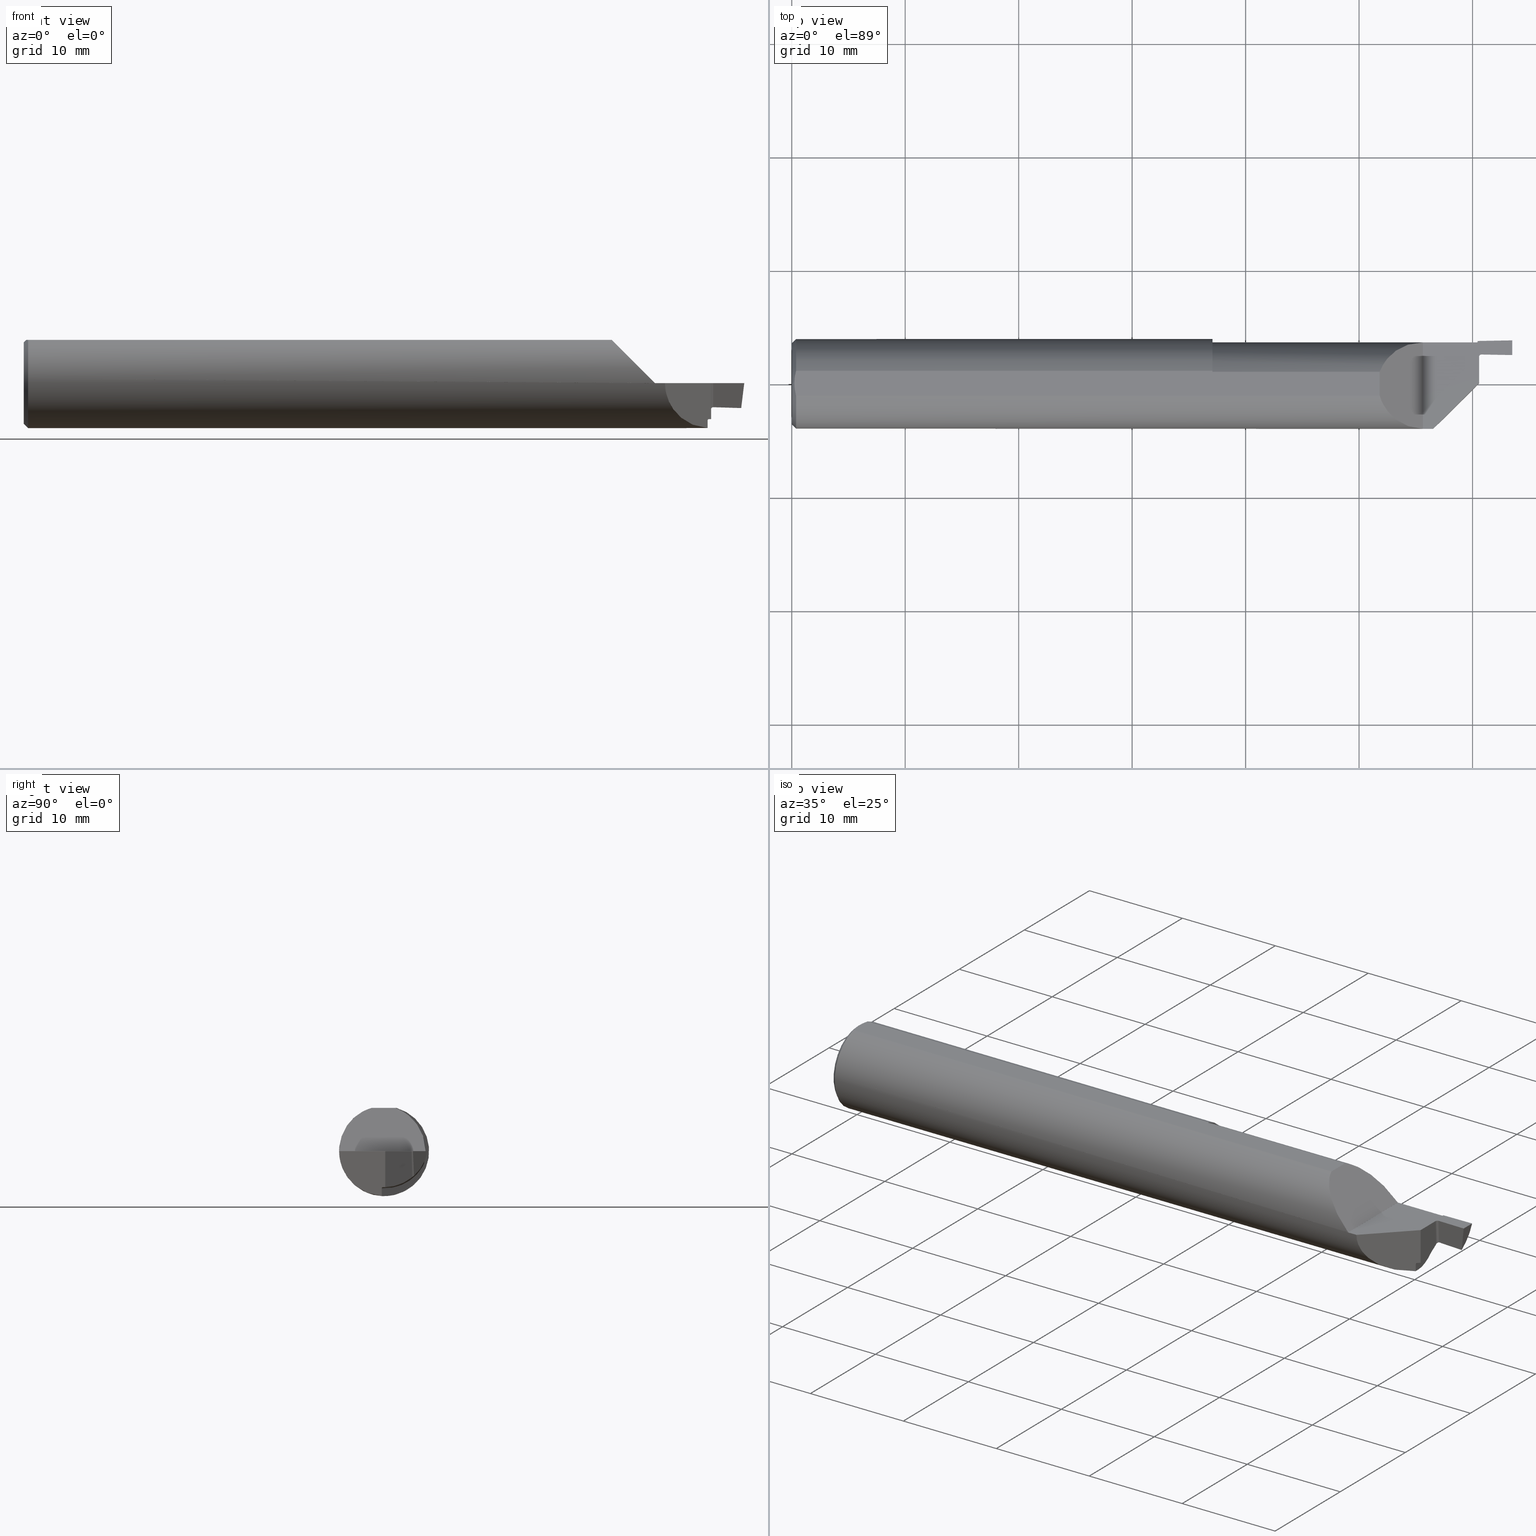
[diagram: canonical four-view strip — front | top / right | iso, engineering-drawing reading convention]
A machine part, canonical four-view strip (front | top / right | iso — engineering-drawing reading convention). The complete STEP part file that produces these views, byte-faithful:
ISO-10303-21;
HEADER;
FILE_DESCRIPTION (( 'STEP AP203' ),
    '1' );
FILE_NAME ('220079-FG312-050.STEP',
    '2024-06-10T23:05:04',
    ( '' ),
    ( '' ),
    'SwSTEP 2.0',
    'SolidWorks 2022',
    '' );
FILE_SCHEMA (( 'CONFIG_CONTROL_DESIGN' ));
ENDSEC;

DATA;
#1 = CARTESIAN_POINT ( 'NONE',  ( 2.393000000000000238, 0.09396571168274749086, -0.1560999999999999888 ) ) ;
#2 = CARTESIAN_POINT ( 'NONE',  ( 1.918500000000000316, 0.03081474338883895270, -0.1530283032313957403 ) ) ;
#3 = ADVANCED_FACE ( 'NONE', ( #369 ), #628, .T. ) ;
#4 = ORIENTED_EDGE ( 'NONE', *, *, #370, .F. ) ;
#5 = CARTESIAN_POINT ( 'NONE',  ( 2.371244399044610596, 0.1398354349246319905, -0.03676311797255334135 ) ) ;
#6 = CLOSED_SHELL ( 'NONE', ( #656, #66, #3, #464, #585, #614, #555, #624, #86, #179, #153, #321, #830, #634, #696, #362, #414, #254, #397, #461, #785, #731 ) ) ;
#7 = PLANE ( 'NONE',  #761 ) ;
#8 = VECTOR ( 'NONE', #804, 39.37007874015748143 ) ;
#9 = ORIENTED_EDGE ( 'NONE', *, *, #379, .T. ) ;
#10 = LOCAL_TIME ( 16, 5, 4.000000000000000000, #128 ) ;
#11 = DIRECTION ( 'NONE',  ( 0.000000000000000000, -1.000000000000000000, 0.000000000000000000 ) ) ;
#12 = DIRECTION ( 'NONE',  ( 1.000000000000000000, -3.711749991391663214E-17, 0.000000000000000000 ) ) ;
#13 = EDGE_LOOP ( 'NONE', ( #710, #538, #736, #386, #478, #340 ) ) ;
#14 = EDGE_CURVE ( 'NONE', #148, #140, #558, .T. ) ;
#15 = CARTESIAN_POINT ( 'NONE',  ( 2.393239966996807411, 0.1077084494822595495, -0.3937401514929491086 ) ) ;
#16 = CARTESIAN_POINT ( 'NONE',  ( 2.393379501196029935, 0.1157023584019033630, -0.3934609555193290253 ) ) ;
#17 = VERTEX_POINT ( 'NONE', #357 ) ;
#18 = ORIENTED_EDGE ( 'NONE', *, *, #158, .F. ) ;
#19 = DIRECTION ( 'NONE',  ( 1.000000000000000000, -3.711749991391663214E-17, 0.000000000000000000 ) ) ;
#20 = CARTESIAN_POINT ( 'NONE',  ( 2.377000000000000224, 0.1440992383597803073, 0.000000000000000000 ) ) ;
#21 = CIRCLE ( 'NONE', #760, 0.1599999999999999756 ) ;
#22 = VERTEX_POINT ( 'NONE', #567 ) ;
#23 = ORIENTED_EDGE ( 'NONE', *, *, #434, .F. ) ;
#24 = AXIS2_PLACEMENT_3D ( 'NONE', #40, #633, #47 ) ;
#25 = CARTESIAN_POINT ( 'NONE',  ( 2.377000000000000224, 0.1418538182356731125, -0.02671128091613287833 ) ) ;
#26 = CARTESIAN_POINT ( 'NONE',  ( 2.377763926017768981, -0.003336073982230913955, -0.1249361410656338184 ) ) ;
#27 = ORIENTED_EDGE ( 'NONE', *, *, #305, .T. ) ;
#28 = VERTEX_POINT ( 'NONE', #695 ) ;
#29 = CARTESIAN_POINT ( 'NONE',  ( 2.379234947019490232, 0.1435602807810283099, -0.02194418270666098625 ) ) ;
#30 = CARTESIAN_POINT ( 'NONE',  ( 2.189999999999999947, -0.04286257108480570621, 9.999999999993541345E-05 ) ) ;
#31 = ORIENTED_EDGE ( 'NONE', *, *, #684, .F. ) ;
#32 = ORIENTED_EDGE ( 'NONE', *, *, #755, .T. ) ;
#33 = CARTESIAN_POINT ( 'NONE',  ( 2.385054088811350503, 0.09899384556074736219, -0.08874999027570952548 ) ) ;
#34 = PLANE ( 'NONE',  #196 ) ;
#35 = EDGE_LOOP ( 'NONE', ( #623, #102, #260, #660, #225, #162, #224, #156, #705, #484 ) ) ;
#36 = TOROIDAL_SURFACE ( 'NONE', #594, 0.1549999999999999989, 0.005000000000000000104 ) ;
#37 = CIRCLE ( 'NONE', #91, 0.1411000000000003085 ) ;
#38 = CC_DESIGN_APPROVAL ( #141, ( #764 ) ) ;
#39 = CARTESIAN_POINT ( 'NONE',  ( 0.000000000000000000, 0.000000000000000000, 0.000000000000000000 ) ) ;
#40 = CARTESIAN_POINT ( 'NONE',  ( 2.189999999999999947, -0.01590076164021980015, 0.000000000000000000 ) ) ;
#41 = VERTEX_POINT ( 'NONE', #504 ) ;
#42 = CALENDAR_DATE ( 2024, 10, 6 ) ;
#43 = EDGE_CURVE ( 'NONE', #318, #344, #21, .T. ) ;
#44 = PLANE ( 'NONE',  #367 ) ;
#45 = CARTESIAN_POINT ( 'NONE',  ( 2.385056136826031459, 0.09491177609559865724, -0.09211041322591238811 ) ) ;
#46 = PERSON_AND_ORGANIZATION_ROLE ( 'design_owner' ) ;
#47 = DIRECTION ( 'NONE',  ( 0.000000000000000000, 0.000000000000000000, -1.000000000000000000 ) ) ;
#48 = VERTEX_POINT ( 'NONE', #119 ) ;
#49 = VECTOR ( 'NONE', #631, 39.37007874015748143 ) ;
#50 = CARTESIAN_POINT ( 'NONE',  ( 2.385000000000000231, 0.09396571168274749086, -0.1560999999999999888 ) ) ;
#51 = CIRCLE ( 'NONE', #116, 0.1560999999999999888 ) ;
#52 = CARTESIAN_POINT ( 'NONE',  ( 2.385239968482531392, 0.1077084494822595495, -0.3937450271037417626 ) ) ;
#53 = CARTESIAN_POINT ( 'NONE',  ( 2.385005047996914485, 0.09424986387498845986, -0.008282853067991792495 ) ) ;
#54 = EDGE_CURVE ( 'NONE', #308, #218, #647, .T. ) ;
#55 = CARTESIAN_POINT ( 'NONE',  ( 2.189999999999999947, -0.2560999999999999943, 0.000000000000000000 ) ) ;
#56 = CARTESIAN_POINT ( 'NONE',  ( 2.385004234609788387, 0.09422697828338277848, -0.006948231403292474094 ) ) ;
#57 = ORIENTED_EDGE ( 'NONE', *, *, #275, .F. ) ;
#58 = B_SPLINE_CURVE_WITH_KNOTS ( 'NONE', 3,
 ( #124, #375, #265, #65, #641, #653, #383, #826, #5, #829, #718, #197 ),
 .UNSPECIFIED., .F., .F.,
 ( 4, 2, 2, 2, 2, 4 ),
 ( 6.925468430849999991E-05, 0.0001140880610904695253, 0.0001589214378724390642, 0.0002485881914363778167, 0.0004279216985642606344, 0.0007865887128200264866 ),
 .UNSPECIFIED. ) ;
#59 = ORIENTED_EDGE ( 'NONE', *, *, #231, .T. ) ;
#60 = FACE_OUTER_BOUND ( 'NONE', #726, .T. ) ;
#61 = CARTESIAN_POINT ( 'NONE',  ( 0.000000000000000000, -0.04286257108480545641, 0.1500999999999999834 ) ) ;
#62 = VECTOR ( 'NONE', #77, 39.37007874015748143 ) ;
#63 = FACE_OUTER_BOUND ( 'NONE', #353, .T. ) ;
#64 = CARTESIAN_POINT ( 'NONE',  ( 2.500000000000000000, 0.1510992383597803412, 2.987958743070287587E-17 ) ) ;
#65 = CARTESIAN_POINT ( 'NONE',  ( 2.373515878567528326, 0.1416355429769736440, -0.02797407924118477593 ) ) ;
#66 = ADVANCED_FACE ( 'NONE', ( #552 ), #435, .F. ) ;
#67 = DIRECTION ( 'NONE',  ( 0.000000000000000000, 0.000000000000000000, -1.000000000000000000 ) ) ;
#68 = EDGE_LOOP ( 'NONE', ( #122, #802, #9, #377, #797 ) ) ;
#69 = CARTESIAN_POINT ( 'NONE',  ( 2.500000000000000000, 0.1510992383597803412, 2.987958743070287587E-17 ) ) ;
#70 = CARTESIAN_POINT ( 'NONE',  ( 2.385003195454505232, 0.09421128917193223595, -0.001601214642617717612 ) ) ;
#71 = DIRECTION ( 'NONE',  ( -1.000000000000000000, 3.711749991391663214E-17, -0.000000000000000000 ) ) ;
#72 = AXIS2_PLACEMENT_3D ( 'NONE', #309, #130, #822 ) ;
#73 = CARTESIAN_POINT ( 'NONE',  ( 0.000000000000000000, 1.727976633596919191E-17, 0.1411000000000003085 ) ) ;
#74 = ORIENTED_EDGE ( 'NONE', *, *, #772, .T. ) ;
#75 = EDGE_CURVE ( 'NONE', #776, #186, #680, .T. ) ;
#76 = CARTESIAN_POINT ( 'NONE',  ( 2.379999999999999893, 0.1490046305683959127, 0.000000000000000000 ) ) ;
#77 = DIRECTION ( 'NONE',  ( 0.7071067811865483499, 8.659560562354922997E-17, 0.7071067811865466846 ) ) ;
#78 = VERTEX_POINT ( 'NONE', #805 ) ;
#79 = VERTEX_POINT ( 'NONE', #424 ) ;
#80 = DIRECTION ( 'NONE',  ( -1.000000000000000000, 0.000000000000000000, 0.000000000000000000 ) ) ;
#81 = PLANE ( 'NONE',  #327 ) ;
#82 = ORIENTED_EDGE ( 'NONE', *, *, #477, .T. ) ;
#83 = ORIENTED_EDGE ( 'NONE', *, *, #176, .T. ) ;
#84 = B_SPLINE_CURVE_WITH_KNOTS ( 'NONE', 3,
 ( #170, #33, #361, #563, #358, #109 ),
 .UNSPECIFIED., .F., .F.,
 ( 4, 2, 4 ),
 ( 0.000000000000000000, 0.0001839710963329287802, 0.0003679421926658575604 ),
 .UNSPECIFIED. ) ;
#85 = CARTESIAN_POINT ( 'NONE',  ( 2.377656767478751210, 0.1419673230917905260, -0.02643351181338333619 ) ) ;
#86 = ADVANCED_FACE ( 'NONE', ( #247 ), #36, .F. ) ;
#87 = CARTESIAN_POINT ( 'NONE',  ( 2.393139705841341502, 0.1019644917325672473, -2.881245930817777536E-17 ) ) ;
#88 = AXIS2_PLACEMENT_3D ( 'NONE', #778, #266, #657 ) ;
#89 =( BOUNDED_CURVE ( )  B_SPLINE_CURVE ( 3, ( #316, #700, #769, #69 ),
 .UNSPECIFIED., .F., .F. ) 
 B_SPLINE_CURVE_WITH_KNOTS ( ( 4, 4 ),
 ( 0.8736282583422526615, 1.544540906567494876 ),
 .UNSPECIFIED. ) 
 CURVE ( )  GEOMETRIC_REPRESENTATION_ITEM ( )  RATIONAL_B_SPLINE_CURVE ( ( 1.000000000000000000, 0.9628401240067141487, 0.9628401240067141487, 1.000000000000000000 ) ) 
 REPRESENTATION_ITEM ( '' )  );
#90 = ORIENTED_EDGE ( 'NONE', *, *, #671, .T. ) ;
#91 = AXIS2_PLACEMENT_3D ( 'NONE', #511, #192, #767 ) ;
#92 = TOROIDAL_SURFACE ( 'NONE', #146, 0.1630000000000001170, 0.002999999999999838299 ) ;
#93 = CARTESIAN_POINT ( 'NONE',  ( 2.378200055832649706, 0.1422963648992363606, -0.02554981597091837697 ) ) ;
#94 = EDGE_CURVE ( 'NONE', #308, #469, #557, .T. ) ;
#95 = DIRECTION ( 'NONE',  ( -0.0006090802009083879243, -0.03489418134011375294, 0.9993908270190957621 ) ) ;
#96 = VERTEX_POINT ( 'NONE', #496 ) ;
#97 = ORIENTED_EDGE ( 'NONE', *, *, #453, .F. ) ;
#98 =( BOUNDED_CURVE ( )  B_SPLINE_CURVE ( 3, ( #816, #244, #756, #181 ),
 .UNSPECIFIED., .F., .F. ) 
 B_SPLINE_CURVE_WITH_KNOTS ( ( 4, 4 ),
 ( 0.8437331445914858508, 0.8732885722994687683 ),
 .UNSPECIFIED. ) 
 CURVE ( )  GEOMETRIC_REPRESENTATION_ITEM ( )  RATIONAL_B_SPLINE_CURVE ( ( 1.000000000000000000, 0.9999272077158007921, 0.9999272077158007921, 1.000000000000000000 ) ) 
 REPRESENTATION_ITEM ( '' )  );
#99 = DIRECTION ( 'NONE',  ( 1.000000000000000000, 0.000000000000000000, 0.000000000000000000 ) ) ;
#100 = CARTESIAN_POINT ( 'NONE',  ( 1.460000000000000187, -0.2561000000000000498, 0.1500999999999999834 ) ) ;
#101 = ADVANCED_BREP_SHAPE_REPRESENTATION ( '220079-FG312-050', ( #732, #198 ), #599 ) ;
#102 = ORIENTED_EDGE ( 'NONE', *, *, #658, .F. ) ;
#103 = APPROVAL_DATE_TIME ( #545, #222 ) ;
#104 = DIRECTION ( 'NONE',  ( 1.000000000000000000, 0.000000000000000000, 0.000000000000000000 ) ) ;
#105 = EDGE_LOOP ( 'NONE', ( #406, #487, #256, #188, #669, #616 ) ) ;
#106 = DIRECTION ( 'NONE',  ( -0.9998476951563914916, -0.01745240643726934937, 0.000000000000000000 ) ) ;
#107 = EDGE_CURVE ( 'NONE', #473, #28, #98, .T. ) ;
#108 = CARTESIAN_POINT ( 'NONE',  ( 2.379999999999999893, 0.1940992383597803239, 0.000000000000000000 ) ) ;
#109 = CARTESIAN_POINT ( 'NONE',  ( 2.393190606884384675, 0.1048806105354574553, -0.08351943705743580804 ) ) ;
#110 = CARTESIAN_POINT ( 'NONE',  ( 0.01499999999999970281, 0.000000000000000000, -0.1560999999999999888 ) ) ;
#111 = DIRECTION ( 'NONE',  ( 0.000000000000000000, 0.000000000000000000, 1.000000000000000000 ) ) ;
#112 = DIRECTION ( 'NONE',  ( 1.000000000000000000, -3.711749991391663214E-17, 0.000000000000000000 ) ) ;
#113 = EDGE_CURVE ( 'NONE', #186, #148, #396, .T. ) ;
#114 = CARTESIAN_POINT ( 'NONE',  ( 0.000000000000000000, 0.000000000000000000, 0.000000000000000000 ) ) ;
#115 = AXIS2_PLACEMENT_3D ( 'NONE', #259, #831, #193 ) ;
#116 = AXIS2_PLACEMENT_3D ( 'NONE', #694, #556, #748 ) ;
#117 = VECTOR ( 'NONE', #402, 39.37007874015748143 ) ;
#118 = CARTESIAN_POINT ( 'NONE',  ( 2.039999999999999591, -0.04286257108480545641, 0.1500999999999999834 ) ) ;
#119 = CARTESIAN_POINT ( 'NONE',  ( 2.379999999999999893, 0.1467311914840958575, -0.01094750304728992450 ) ) ;
#120 = CARTESIAN_POINT ( 'NONE',  ( 2.371295404501523318, 0.08075183299855108465, -0.1377838268075109174 ) ) ;
#121 = LINE ( 'NONE', #61, #314 ) ;
#122 = ORIENTED_EDGE ( 'NONE', *, *, #820, .T. ) ;
#123 = DATE_TIME_ROLE ( 'classification_date' ) ;
#124 = CARTESIAN_POINT ( 'NONE',  ( 2.375229166716647189, 0.1418801891223627210, -0.02655506686972410046 ) ) ;
#125 = CARTESIAN_POINT ( 'NONE',  ( 2.372688307384104078, 0.0009524803000360264208, 0.02500000000000001180 ) ) ;
#126 = ORIENTED_EDGE ( 'NONE', *, *, #263, .T. ) ;
#127 = EDGE_CURVE ( 'NONE', #218, #738, #404, .T. ) ;
#128 = COORDINATED_UNIVERSAL_TIME_OFFSET ( 8, 0, .BEHIND. ) ;
#129 = AXIS2_PLACEMENT_3D ( 'NONE', #16, #728, #668 ) ;
#130 = DIRECTION ( 'NONE',  ( 0.9998476951563914916, 0.01745240643726934937, -0.000000000000000000 ) ) ;
#131 = PRODUCT_RELATED_PRODUCT_CATEGORY ( 'detail', '', ( #516 ) ) ;
#132 = CARTESIAN_POINT ( 'NONE',  ( 2.039999999999999591, 0.03950672882812745340, 0.1500999999999999834 ) ) ;
#133 = SHAPE_DEFINITION_REPRESENTATION ( #706, #101 ) ;
#134 = DIRECTION ( 'NONE',  ( -0.9998476951563916026, -0.01745240643726935284, -0.000000000000000000 ) ) ;
#135 = DIRECTION ( 'NONE',  ( -1.000000000000000000, 0.000000000000000000, 0.000000000000000000 ) ) ;
#136 = EDGE_LOOP ( 'NONE', ( #643, #270, #83, #605 ) ) ;
#137 = CARTESIAN_POINT ( 'NONE',  ( 2.370342329189448094, 0.1353534810585909909, -0.05217426631596511211 ) ) ;
#138 = EDGE_CURVE ( 'NONE', #801, #539, #143, .T. ) ;
#139 = CARTESIAN_POINT ( 'NONE',  ( 2.630067462402516654, 0.1533695743610629103, 0.000000000000000000 ) ) ;
#140 = VERTEX_POINT ( 'NONE', #517 ) ;
#141 = APPROVAL ( #226, 'UNSPECIFIED' ) ;
#142 = CARTESIAN_POINT ( 'NONE',  ( 2.377000000000000224, 0.1418538182356731125, -0.02671128091613287833 ) ) ;
#143 = CIRCLE ( 'NONE', #711, 0.1549999999999999711 ) ;
#144 = AXIS2_PLACEMENT_3D ( 'NONE', #565, #814, #178 ) ;
#145 = CARTESIAN_POINT ( 'NONE',  ( 2.377763926017768981, -0.003336073982230913955, -0.1249361410656338184 ) ) ;
#146 = AXIS2_PLACEMENT_3D ( 'NONE', #792, #71, #667 ) ;
#147 = ORIENTED_EDGE ( 'NONE', *, *, #752, .F. ) ;
#148 = VERTEX_POINT ( 'NONE', #774 ) ;
#149 = CARTESIAN_POINT ( 'NONE',  ( 2.379999999999999893, 0.1483830813600987564, -0.003676574659982130306 ) ) ;
#150 = CARTESIAN_POINT ( 'NONE',  ( 2.373633180895108996, -0.007466819104891537703, -0.1267740301659952828 ) ) ;
#151 = ORIENTED_EDGE ( 'NONE', *, *, #799, .F. ) ;
#152 = ORIENTED_EDGE ( 'NONE', *, *, #501, .F. ) ;
#153 = ADVANCED_FACE ( 'NONE', ( #578 ), #448, .T. ) ;
#154 = CARTESIAN_POINT ( 'NONE',  ( 2.379999999999999893, 0.1467311914840958575, -0.01094750304728992450 ) ) ;
#155 = CARTESIAN_POINT ( 'NONE',  ( 0.008999999999999475433, 0.007249779851909510416, 0.1500999999999999834 ) ) ;
#156 = ORIENTED_EDGE ( 'NONE', *, *, #597, .T. ) ;
#157 = ORIENTED_EDGE ( 'NONE', *, *, #138, .F. ) ;
#158 = EDGE_CURVE ( 'NONE', #530, #48, #811, .T. ) ;
#159 = CARTESIAN_POINT ( 'NONE',  ( 2.385001483111417908, 0.09411543361701144028, -0.0002790132549049058244 ) ) ;
#160 = CARTESIAN_POINT ( 'NONE',  ( 0.01499999999999970281, 0.04286257108480545641, 0.1500999999999999834 ) ) ;
#161 = ORIENTED_EDGE ( 'NONE', *, *, #370, .T. ) ;
#162 = ORIENTED_EDGE ( 'NONE', *, *, #348, .F. ) ;
#163 = DIRECTION ( 'NONE',  ( 3.711749991391663214E-17, 1.000000000000000000, 0.000000000000000000 ) ) ;
#164 = VERTEX_POINT ( 'NONE', #64 ) ;
#165 = LENGTH_MEASURE_WITH_UNIT ( LENGTH_MEASURE( 0.02539999999999999897 ), #749 );
#166 = CARTESIAN_POINT ( 'NONE',  ( 2.377000000000000224, -0.01590076164021980709, 0.000000000000000000 ) ) ;
#167 = EDGE_CURVE ( 'NONE', #204, #41, #586, .T. ) ;
#168 = CARTESIAN_POINT ( 'NONE',  ( 0.000000000000000000, -0.1560999999999999888, 0.000000000000000000 ) ) ;
#169 = B_SPLINE_CURVE_WITH_KNOTS ( 'NONE', 3,
 ( #691, #307, #630, #427 ),
 .UNSPECIFIED., .F., .F.,
 ( 4, 4 ),
 ( 0.000000000000000000, 3.051263499647781233E-05 ),
 .UNSPECIFIED. ) ;
#170 = CARTESIAN_POINT ( 'NONE',  ( 2.385055041774849283, 0.09711400549466935039, -0.09031363161221099556 ) ) ;
#171 = CARTESIAN_POINT ( 'NONE',  ( 2.039999999999999591, 0.04286257108480545641, 0.1500999999999999834 ) ) ;
#172 = CARTESIAN_POINT ( 'NONE',  ( 2.372167059642986242, 0.03081474338882099831, -0.1530283032314002645 ) ) ;
#173 = DATE_TIME_ROLE ( 'creation_date' ) ;
#174 = DIRECTION ( 'NONE',  ( 0.7071067811865483499, 0.000000000000000000, -0.7071067811865466846 ) ) ;
#175 =( BOUNDED_CURVE ( )  B_SPLINE_CURVE ( 3, ( #346, #777, #784, #202 ),
 .UNSPECIFIED., .F., .F. ) 
 B_SPLINE_CURVE_WITH_KNOTS ( ( 4, 4 ),
 ( 1.589012014906513892, 2.237706698034379826 ),
 .UNSPECIFIED. ) 
 CURVE ( )  GEOMETRIC_REPRESENTATION_ITEM ( )  RATIONAL_B_SPLINE_CURVE ( ( 1.000000000000000000, 0.9652392827604920900, 0.9652392827604920900, 1.000000000000000000 ) ) 
 REPRESENTATION_ITEM ( '' )  );
#176 = EDGE_CURVE ( 'NONE', #539, #186, #313, .T. ) ;
#177 = CARTESIAN_POINT ( 'NONE',  ( 2.380000000000028315, 0.1460423594511482681, -0.01373764327083972295 ) ) ;
#178 = DIRECTION ( 'NONE',  ( 0.01745240643726934937, -0.9998476951563914916, 0.000000000000000000 ) ) ;
#179 = ADVANCED_FACE ( 'NONE', ( #190 ), #249, .F. ) ;
#180 = DESIGN_CONTEXT ( 'detailed design', #480, 'design' ) ;
#181 = CARTESIAN_POINT ( 'NONE',  ( 2.489375182436742939, 0.1033069263747718736, -0.08653219496919382914 ) ) ;
#182 =( BOUNDED_CURVE ( )  B_SPLINE_CURVE ( 3, ( #368, #324, #261, #592 ),
 .UNSPECIFIED., .F., .T. ) 
 B_SPLINE_CURVE_WITH_KNOTS ( ( 4, 4 ),
 ( 4.713013980425380112, 5.929564525929066576 ),
 .UNSPECIFIED. ) 
 CURVE ( )  GEOMETRIC_REPRESENTATION_ITEM ( )  RATIONAL_B_SPLINE_CURVE ( ( 1.000000000000000000, 0.8804232255846620170, 0.8804232255846620170, 1.000000000000000000 ) ) 
 REPRESENTATION_ITEM ( '' )  );
#183 = APPROVAL_ROLE ( '' ) ;
#184 = CARTESIAN_POINT ( 'NONE',  ( 2.370342329189448094, 0.1353534810585909909, -0.05217426631596511211 ) ) ;
#185 = DIRECTION ( 'NONE',  ( 0.000000000000000000, 1.000000000000000000, 0.000000000000000000 ) ) ;
#186 = VERTEX_POINT ( 'NONE', #447 ) ;
#187 = B_SPLINE_CURVE_WITH_KNOTS ( 'NONE', 3,
 ( #276, #212, #150, #793, #272, #26 ),
 .UNSPECIFIED., .F., .F.,
 ( 4, 2, 4 ),
 ( 0.000000000000000000, 0.0001183898561048860596, 0.0002367797122097721192 ),
 .UNSPECIFIED. ) ;
#188 = ORIENTED_EDGE ( 'NONE', *, *, #379, .F. ) ;
#189 = FACE_OUTER_BOUND ( 'NONE', #105, .T. ) ;
#190 = FACE_OUTER_BOUND ( 'NONE', #591, .T. ) ;
#191 = EDGE_CURVE ( 'NONE', #824, #164, #376, .T. ) ;
#192 = DIRECTION ( 'NONE',  ( -1.000000000000000000, -0.000000000000000000, -0.000000000000000000 ) ) ;
#193 = DIRECTION ( 'NONE',  ( 0.000000000000000000, 0.000000000000000000, -1.000000000000000000 ) ) ;
#194 = SECURITY_CLASSIFICATION_LEVEL ( 'unclassified' ) ;
#195 = EDGE_LOOP ( 'NONE', ( #413, #491, #230, #602, #798, #617, #334, #97, #207, #250, #90, #606 ) ) ;
#196 = AXIS2_PLACEMENT_3D ( 'NONE', #359, #418, #494 ) ;
#197 = CARTESIAN_POINT ( 'NONE',  ( 2.370342329189448094, 0.1353534810585909909, -0.05217426631596511211 ) ) ;
#198 = AXIS2_PLACEMENT_3D ( 'NONE', #39, #364, #99 ) ;
#199 = CARTESIAN_POINT ( 'NONE',  ( 2.157499999999999751, -0.2235999999999995491, 0.000000000000000000 ) ) ;
#200 = EDGE_LOOP ( 'NONE', ( #82, #779, #215 ) ) ;
#201 = EDGE_CURVE ( 'NONE', #333, #530, #651, .T. ) ;
#202 = CARTESIAN_POINT ( 'NONE',  ( 2.385000000000000231, 0.09396571168274749086, -0.09286048068380960141 ) ) ;
#203 = CARTESIAN_POINT ( 'NONE',  ( 2.385000000000000231, 0.003900000000000025408, -0.1249751148411059609 ) ) ;
#204 = VERTEX_POINT ( 'NONE', #203 ) ;
#205 = DIRECTION ( 'NONE',  ( -0.000000000000000000, -0.000000000000000000, 1.000000000000000000 ) ) ;
#206 = CARTESIAN_POINT ( 'NONE',  ( 2.385938313768157126, 0.09827078404856430527, -0.0001333563681700370210 ) ) ;
#207 = ORIENTED_EDGE ( 'NONE', *, *, #755, .F. ) ;
#208 = VERTEX_POINT ( 'NONE', #132 ) ;
#209 = B_SPLINE_CURVE_WITH_KNOTS ( 'NONE', 3,
 ( #608, #471, #536, #734, #155, #781 ),
 .UNSPECIFIED., .F., .F.,
 ( 4, 2, 4 ),
 ( 0.003872957156311483077, 0.004417820756918436169, 0.004962684357525389695 ),
 .UNSPECIFIED. ) ;
#210 = DIRECTION ( 'NONE',  ( 0.000000000000000000, 1.000000000000000000, 0.000000000000000000 ) ) ;
#211 = AXIS2_PLACEMENT_3D ( 'NONE', #466, #527, #80 ) ;
#212 = CARTESIAN_POINT ( 'NONE',  ( 2.372848955506935642, -0.008251044493063981050, -0.1281467683057909701 ) ) ;
#213 = AXIS2_PLACEMENT_3D ( 'NONE', #50, #429, #351 ) ;
#214 = ORIENTED_EDGE ( 'NONE', *, *, #245, .T. ) ;
#215 = ORIENTED_EDGE ( 'NONE', *, *, #501, .T. ) ;
#216 = LINE ( 'NONE', #336, #612 ) ;
#217 = FACE_OUTER_BOUND ( 'NONE', #13, .T. ) ;
#218 = VERTEX_POINT ( 'NONE', #382 ) ;
#219 = EDGE_CURVE ( 'NONE', #776, #344, #457, .T. ) ;
#220 = B_SPLINE_CURVE_WITH_KNOTS ( 'NONE', 3,
 ( #87, #343, #615, #206, #462, #280 ),
 .UNSPECIFIED., .F., .F.,
 ( 4, 2, 4 ),
 ( 0.000000000000000000, 0.5000000000000000000, 1.000000000000000000 ),
 .UNSPECIFIED. ) ;
#221 = CARTESIAN_POINT ( 'NONE',  ( 2.379999999999999893, 0.1476249171666393079, -0.007327433341974248782 ) ) ;
#222 = APPROVAL ( #744, 'UNSPECIFIED' ) ;
#223 = FACE_OUTER_BOUND ( 'NONE', #200, .T. ) ;
#224 = ORIENTED_EDGE ( 'NONE', *, *, #569, .T. ) ;
#225 = ORIENTED_EDGE ( 'NONE', *, *, #474, .T. ) ;
#226 = APPROVAL_STATUS ( 'not_yet_approved' ) ;
#227 = DIRECTION ( 'NONE',  ( 0.1217869383157133695, -0.03676811390802550705, 0.9918750160455352960 ) ) ;
#228 = AXIS2_PLACEMENT_3D ( 'NONE', #476, #12, #163 ) ;
#229 = ORIENTED_EDGE ( 'NONE', *, *, #372, .T. ) ;
#230 = ORIENTED_EDGE ( 'NONE', *, *, #191, .T. ) ;
#231 = EDGE_CURVE ( 'NONE', #513, #164, #262, .T. ) ;
#232 = CARTESIAN_POINT ( 'NONE',  ( 2.500000000000000000, 0.1000992383597803653, 0.000000000000000000 ) ) ;
#233 = CARTESIAN_POINT ( 'NONE',  ( 2.372391662347563379, 0.01794726306141073563, -0.1556193801497015861 ) ) ;
#234 =( NAMED_UNIT ( * ) PLANE_ANGLE_UNIT ( ) SI_UNIT ( $, .RADIAN. ) );
#235 = FACE_OUTER_BOUND ( 'NONE', #136, .T. ) ;
#236 = EDGE_LOOP ( 'NONE', ( #405, #543, #701 ) ) ;
#237 = CARTESIAN_POINT ( 'NONE',  ( 2.385012912646144567, 0.09447114491674436787, -0.02118732490371358357 ) ) ;
#238 = DIRECTION ( 'NONE',  ( 0.000000000000000000, 1.000000000000000000, 0.000000000000000000 ) ) ;
#239 = EDGE_LOOP ( 'NONE', ( #389, #526, #729, #666 ) ) ;
#240 = EDGE_CURVE ( 'NONE', #148, #41, #521, .T. ) ;
#241 = VECTOR ( 'NONE', #709, 39.37007874015748143 ) ;
#242 = APPROVAL_ROLE ( '' ) ;
#243 = FACE_OUTER_BOUND ( 'NONE', #236, .T. ) ;
#244 = CARTESIAN_POINT ( 'NONE',  ( 2.424841804759129360, 0.1043637696812105276, -0.08453967324277160411 ) ) ;
#245 = EDGE_CURVE ( 'NONE', #530, #824, #388, .T. ) ;
#246 = DIRECTION ( 'NONE',  ( 0.000000000000000000, 0.000000000000000000, -1.000000000000000000 ) ) ;
#247 = FACE_OUTER_BOUND ( 'NONE', #670, .T. ) ;
#248 = ORIENTED_EDGE ( 'NONE', *, *, #671, .F. ) ;
#249 = PLANE ( 'NONE',  #115 ) ;
#250 = ORIENTED_EDGE ( 'NONE', *, *, #384, .F. ) ;
#251 = AXIS2_PLACEMENT_3D ( 'NONE', #525, #765, #135 ) ;
#252 = PERSON_AND_ORGANIZATION ( #577, #568 ) ;
#253 = FACE_OUTER_BOUND ( 'NONE', #783, .T. ) ;
#254 = ADVANCED_FACE ( 'NONE', ( #593 ), #7, .F. ) ;
#255 = CARTESIAN_POINT ( 'NONE',  ( 1.460000000000000187, 0.1440992383597802795, 0.000000000000000000 ) ) ;
#256 = ORIENTED_EDGE ( 'NONE', *, *, #127, .T. ) ;
#257 = CC_DESIGN_PERSON_AND_ORGANIZATION_ASSIGNMENT ( #354, #421, ( #399 ) ) ;
#258 = CARTESIAN_POINT ( 'NONE',  ( 2.370639515830912813, 0.1183276697718876336, -0.1015324341320246460 ) ) ;
#259 = CARTESIAN_POINT ( 'NONE',  ( 0.000000000000000000, 0.000000000000000000, 0.000000000000000000 ) ) ;
#260 = ORIENTED_EDGE ( 'NONE', *, *, #544, .F. ) ;
#261 = CARTESIAN_POINT ( 'NONE',  ( 2.063975418773851711, 0.1044566178690502362, 0.1261245812261483912 ) ) ;
#262 = LINE ( 'NONE', #325, #289 ) ;
#263 = EDGE_CURVE ( 'NONE', #609, #96, #121, .T. ) ;
#264 = VECTOR ( 'NONE', #712, 39.37007874015748854 ) ;
#265 = CARTESIAN_POINT ( 'NONE',  ( 2.374165026253837407, 0.1418026415305609633, -0.02701616201808509227 ) ) ;
#266 = DIRECTION ( 'NONE',  ( 1.000000000000000000, 0.000000000000000000, 0.000000000000000000 ) ) ;
#267 = EDGE_LOOP ( 'NONE', ( #794, #330, #635 ) ) ;
#268 = CARTESIAN_POINT ( 'NONE',  ( 2.039999999999999591, -0.04286257108480545641, 0.1500999999999999834 ) ) ;
#269 = LINE ( 'NONE', #679, #750 ) ;
#270 = ORIENTED_EDGE ( 'NONE', *, *, #138, .T. ) ;
#271 = CARTESIAN_POINT ( 'NONE',  ( 2.189999999999999947, -0.1560999679692472164, 9.999999999982123341E-05 ) ) ;
#272 = CARTESIAN_POINT ( 'NONE',  ( 2.376656873800778502, -0.004443126199221629144, -0.1249043962154921389 ) ) ;
#273 = VERTEX_POINT ( 'NONE', #580 ) ;
#274 = LINE ( 'NONE', #540, #813 ) ;
#275 = EDGE_CURVE ( 'NONE', #782, #333, #827, .T. ) ;
#276 = CARTESIAN_POINT ( 'NONE',  ( 2.372848955506936086, -0.008251044493063981050, -0.1297264338229360825 ) ) ;
#277 = ORIENTED_EDGE ( 'NONE', *, *, #14, .T. ) ;
#278 = ORIENTED_EDGE ( 'NONE', *, *, #537, .T. ) ;
#279 = CARTESIAN_POINT ( 'NONE',  ( 0.000000000000000000, 0.04286257108480545641, 0.1500999999999999834 ) ) ;
#280 = CARTESIAN_POINT ( 'NONE',  ( 2.385001483111417908, 0.09411543361701144028, -0.0002790132549049058244 ) ) ;
#281 = ORIENTED_EDGE ( 'NONE', *, *, #518, .T. ) ;
#282 = CARTESIAN_POINT ( 'NONE',  ( 1.460000000000000187, -0.01590076164021977240, 0.000000000000000000 ) ) ;
#283 = DIRECTION ( 'NONE',  ( 0.9998476951563914916, -0.01745240643727535151, 0.000000000000000000 ) ) ;
#284 = ORIENTED_EDGE ( 'NONE', *, *, #518, .F. ) ;
#285 = VERTEX_POINT ( 'NONE', #403 ) ;
#286 = EDGE_CURVE ( 'NONE', #725, #22, #400, .T. ) ;
#287 = CARTESIAN_POINT ( 'NONE',  ( 2.379999999999999893, 0.1490046305683959127, 0.000000000000000000 ) ) ;
#288 = DIRECTION ( 'NONE',  ( -1.000000000000000000, -0.000000000000000000, -0.000000000000000000 ) ) ;
#289 = VECTOR ( 'NONE', #185, 39.37007874015748143 ) ;
#290 = DIRECTION ( 'NONE',  ( 0.000000000000000000, 0.000000000000000000, -1.000000000000000000 ) ) ;
#291 = LOCAL_TIME ( 16, 5, 4.000000000000000000, #689 ) ;
#292 = PLANE ( 'NONE',  #213 ) ;
#293 = CARTESIAN_POINT ( 'NONE',  ( 0.000000000000000000, 1.819825143532968629E-17, 0.1411000000000003085 ) ) ;
#294 = DIRECTION ( 'NONE',  ( -1.000000000000000000, 3.711749991391663214E-17, -0.000000000000000000 ) ) ;
#295 = CARTESIAN_POINT ( 'NONE',  ( 2.379432643488158750, 0.1440049745493859334, -0.02058405623766048839 ) ) ;
#296 = FACE_OUTER_BOUND ( 'NONE', #717, .T. ) ;
#297 = CARTESIAN_POINT ( 'NONE',  ( 2.385055776052134924, 0.09565151648513786631, -0.09151844828928476505 ) ) ;
#298 = COORDINATED_UNIVERSAL_TIME_OFFSET ( 8, 0, .BEHIND. ) ;
#299 = PLANE ( 'NONE',  #144 ) ;
#300 = EDGE_CURVE ( 'NONE', #28, #513, #620, .T. ) ;
#301 = CARTESIAN_POINT ( 'NONE',  ( 1.460000000000000187, -0.01590076164021977240, 0.000000000000000000 ) ) ;
#302 = VECTOR ( 'NONE', #823, 39.37007874015748143 ) ;
#303 = AXIS2_PLACEMENT_3D ( 'NONE', #584, #446, #773 ) ;
#304 = LOCAL_TIME ( 16, 5, 4.000000000000000000, #298 ) ;
#305 = EDGE_CURVE ( 'NONE', #548, #273, #786, .T. ) ;
#306 = COORDINATED_UNIVERSAL_TIME_OFFSET ( 8, 0, .BEHIND. ) ;
#307 = CARTESIAN_POINT ( 'NONE',  ( 2.385000000000000231, 0.09428427481743073546, -0.09260973401708438857 ) ) ;
#308 = VERTEX_POINT ( 'NONE', #411 ) ;
#309 = CARTESIAN_POINT ( 'NONE',  ( 2.377687545859886065, 0.001039742332222376529, 0.02500000000000001180 ) ) ;
#310 = CARTESIAN_POINT ( 'NONE',  ( 2.385002345047224193, 0.09416061770720553226, -0.002944330584033895675 ) ) ;
#311 = EDGE_CURVE ( 'NONE', #473, #621, #269, .T. ) ;
#312 = PLANE ( 'NONE',  #812 ) ;
#313 = LINE ( 'NONE', #654, #408 ) ;
#314 = VECTOR ( 'NONE', #374, 39.37007874015748143 ) ;
#315 = PERSON_AND_ORGANIZATION ( #577, #568 ) ;
#316 = CARTESIAN_POINT ( 'NONE',  ( 2.489375182436742939, 0.1033069263747718736, -0.08653219496919382914 ) ) ;
#317 = CARTESIAN_POINT ( 'NONE',  ( 2.385003523125127423, 0.09420410356945330133, -0.005613609509490690395 ) ) ;
#318 = VERTEX_POINT ( 'NONE', #601 ) ;
#319 = CALENDAR_DATE ( 2024, 10, 6 ) ;
#320 = CARTESIAN_POINT ( 'NONE',  ( 2.189999999999999947, 0.2560999999999999943, 0.000000000000000000 ) ) ;
#321 = ADVANCED_FACE ( 'NONE', ( #217 ), #81, .F. ) ;
#322 = DIRECTION ( 'NONE',  ( 0.000000000000000000, -1.000000000000000000, 0.000000000000000000 ) ) ;
#323 = ORIENTED_EDGE ( 'NONE', *, *, #75, .T. ) ;
#324 = CARTESIAN_POINT ( 'NONE',  ( 2.120766287695780239, 0.1440559360311356729, 0.06933371230421989106 ) ) ;
#325 = CARTESIAN_POINT ( 'NONE',  ( 2.500000000000000000, -0.2560999999999999943, 0.000000000000000000 ) ) ;
#326 = ORIENTED_EDGE ( 'NONE', *, *, #490, .F. ) ;
#327 = AXIS2_PLACEMENT_3D ( 'NONE', #483, #673, #332 ) ;
#328 = CARTESIAN_POINT ( 'NONE',  ( 2.378767279813433166, 0.1428731460595972502, -0.02394130643959085231 ) ) ;
#329 = CARTESIAN_POINT ( 'NONE',  ( 2.196310008884322595, 0.1054001668727518604, 0.000000000000000000 ) ) ;
#330 = ORIENTED_EDGE ( 'NONE', *, *, #648, .T. ) ;
#331 = CARTESIAN_POINT ( 'NONE',  ( 0.01308010236197404939, -0.03587054952121920826, 0.1500999999999999834 ) ) ;
#332 = DIRECTION ( 'NONE',  ( -0.7071067811865486830, -0.7071067811865464625, 0.000000000000000000 ) ) ;
#333 = VERTEX_POINT ( 'NONE', #20 ) ;
#334 = ORIENTED_EDGE ( 'NONE', *, *, #94, .F. ) ;
#335 = EDGE_CURVE ( 'NONE', #539, #17, #187, .T. ) ;
#336 = CARTESIAN_POINT ( 'NONE',  ( 2.385000000000000231, -0.2560999999999999943, 0.000000000000000000 ) ) ;
#337 = CARTESIAN_POINT ( 'NONE',  ( 2.376409719787352159, 0.1418626297334948938, -0.02665924095077311026 ) ) ;
#338 = CC_DESIGN_PERSON_AND_ORGANIZATION_ASSIGNMENT ( #432, #821, ( #570 ) ) ;
#339 = ORIENTED_EDGE ( 'NONE', *, *, #741, .T. ) ;
#340 = ORIENTED_EDGE ( 'NONE', *, *, #240, .F. ) ;
#341 = CARTESIAN_POINT ( 'NONE',  ( 0.01156122974740471897, -0.02873113156979006239, 0.1500999999999999279 ) ) ;
#342 = AXIS2_PLACEMENT_3D ( 'NONE', #489, #112, #238 ) ;
#343 = CARTESIAN_POINT ( 'NONE',  ( 2.391046502187424316, 0.1020010287382544650, 1.941464543226822014E-18 ) ) ;
#344 = VERTEX_POINT ( 'NONE', #659 ) ;
#345 = ORIENTED_EDGE ( 'NONE', *, *, #201, .F. ) ;
#346 = CARTESIAN_POINT ( 'NONE',  ( 2.385000000000000231, 0.003900000000000025408, -0.1249751148411059609 ) ) ;
#347 = CARTESIAN_POINT ( 'NONE',  ( 2.375229166716647189, 0.1418801891223627210, -0.02655506686972410046 ) ) ;
#348 = EDGE_CURVE ( 'NONE', #587, #771, #445, .T. ) ;
#349 = EDGE_LOOP ( 'NONE', ( #440, #766, #151, #161, #444, #730, #278 ) ) ;
#350 = ORIENTED_EDGE ( 'NONE', *, *, #763, .F. ) ;
#351 = DIRECTION ( 'NONE',  ( -0.000000000000000000, 0.000000000000000000, 1.000000000000000000 ) ) ;
#352 = CARTESIAN_POINT ( 'NONE',  ( 2.189999999999999947, -0.2560999999999999943, 0.000000000000000000 ) ) ;
#353 = EDGE_LOOP ( 'NONE', ( #23, #27, #4, #412, #529 ) ) ;
#354 = PERSON_AND_ORGANIZATION ( #577, #568 ) ;
#355 = CARTESIAN_POINT ( 'NONE',  ( 2.189999999999999947, 0.000000000000000000, 0.000000000000000000 ) ) ;
#356 = VECTOR ( 'NONE', #721, 39.37007874015748143 ) ;
#357 = CARTESIAN_POINT ( 'NONE',  ( 2.377763926017768981, -0.003336073982230913955, -0.1249361410656338184 ) ) ;
#358 = CARTESIAN_POINT ( 'NONE',  ( 2.390727515108566514, 0.1049208310181902332, -0.08344004242070025834 ) ) ;
#359 = CARTESIAN_POINT ( 'NONE',  ( 2.385245154593712780, -0.1360082040469302589, -0.4022545007902889047 ) ) ;
#360 = CARTESIAN_POINT ( 'NONE',  ( 2.385056136826031459, 0.09491177609559865724, -0.09211041322591238811 ) ) ;
#361 = CARTESIAN_POINT ( 'NONE',  ( 2.385727698357268611, 0.1008184071607406418, -0.08715664266966950680 ) ) ;
#362 = ADVANCED_FACE ( 'NONE', ( #467 ), #604, .F. ) ;
#363 = DIRECTION ( 'NONE',  ( -0.000000000000000000, 1.000000000000000000, 0.000000000000000000 ) ) ;
#364 = DIRECTION ( 'NONE',  ( 0.000000000000000000, 0.000000000000000000, 1.000000000000000000 ) ) ;
#365 = LINE ( 'NONE', #100, #8 ) ;
#366 = CARTESIAN_POINT ( 'NONE',  ( 2.285319229756169968, -0.09578077024382962434, -0.1512487100964495512 ) ) ;
#367 = AXIS2_PLACEMENT_3D ( 'NONE', #352, #754, #697 ) ;
#368 = CARTESIAN_POINT ( 'NONE',  ( 2.189999999999999947, 0.1440992071097771388, 9.999999999993541345E-05 ) ) ;
#369 = FACE_OUTER_BOUND ( 'NONE', #394, .T. ) ;
#370 = EDGE_CURVE ( 'NONE', #401, #273, #209, .T. ) ;
#371 = VERTEX_POINT ( 'NONE', #737 ) ;
#372 = EDGE_CURVE ( 'NONE', #621, #513, #528, .T. ) ;
#373 = LINE ( 'NONE', #55, #495 ) ;
#374 = DIRECTION ( 'NONE',  ( -1.000000000000000000, -0.000000000000000000, -0.000000000000000000 ) ) ;
#375 = CARTESIAN_POINT ( 'NONE',  ( 2.374634460130373270, 0.1418890240198467378, -0.02650257298851747823 ) ) ;
#376 = LINE ( 'NONE', #139, #264 ) ;
#377 = ORIENTED_EDGE ( 'NONE', *, *, #127, .F. ) ;
#378 = AXIS2_PLACEMENT_3D ( 'NONE', #561, #104, #551 ) ;
#379 = EDGE_CURVE ( 'NONE', #621, #738, #220, .T. ) ;
#380 = LOCAL_TIME ( 16, 5, 4.000000000000000000, #306 ) ;
#381 = CARTESIAN_POINT ( 'NONE',  ( 2.375229166716647189, 0.1418801891223627210, -0.02655506686972410046 ) ) ;
#382 = CARTESIAN_POINT ( 'NONE',  ( 2.385005047996914485, 0.09424986387498845986, -0.008282853067991792495 ) ) ;
#383 = CARTESIAN_POINT ( 'NONE',  ( 2.372340772030441247, 0.1410310789320680103, -0.03120366545082840781 ) ) ;
#384 = EDGE_CURVE ( 'NONE', #17, #204, #582, .T. ) ;
#385 = DIRECTION ( 'NONE',  ( 3.711749991391663214E-17, 1.000000000000000000, 0.000000000000000000 ) ) ;
#386 = ORIENTED_EDGE ( 'NONE', *, *, #384, .T. ) ;
#387 = DIRECTION ( 'NONE',  ( -0.0006090802009083879243, -0.03489418134011375294, 0.9993908270190957621 ) ) ;
#388 = LINE ( 'NONE', #719, #566 ) ;
#389 = ORIENTED_EDGE ( 'NONE', *, *, #201, .T. ) ;
#390 = CIRCLE ( 'NONE', #378, 0.1560999999999999888 ) ;
#391 = APPROVAL_PERSON_ORGANIZATION ( #693, #141, #242 ) ;
#392 = CARTESIAN_POINT ( 'NONE',  ( 2.117630523791210084, -0.1560536069884282118, 0.07246947620879010121 ) ) ;
#393 = DIRECTION ( 'NONE',  ( 0.000000000000000000, -1.000000000000000000, 0.000000000000000000 ) ) ;
#394 = EDGE_LOOP ( 'NONE', ( #665, #323, #485, #277, #326, #74, #126, #281, #675, #533, #152 ) ) ;
#395 = ORIENTED_EDGE ( 'NONE', *, *, #658, .T. ) ;
#396 =( BOUNDED_CURVE ( )  B_SPLINE_CURVE ( 3, ( #698, #366, #640, #507 ),
 .UNSPECIFIED., .F., .F. ) 
 B_SPLINE_CURVE_WITH_KNOTS ( ( 4, 4 ),
 ( 4.765271052396672147, 6.283185307179586232 ),
 .UNSPECIFIED. ) 
 CURVE ( )  GEOMETRIC_REPRESENTATION_ITEM ( )  RATIONAL_B_SPLINE_CURVE ( ( 1.000000000000000000, 0.8170360491703279049, 0.8170360491703279049, 1.000000000000000000 ) ) 
 REPRESENTATION_ITEM ( '' )  );
#397 = ADVANCED_FACE ( 'NONE', ( #223 ), #800, .T. ) ;
#398 = CARTESIAN_POINT ( 'NONE',  ( 2.059871508359184311, -0.1124504032942231085, 0.1302284916408148197 ) ) ;
#399 = PRODUCT_DEFINITION ( 'UNKNOWN', '', #764, #180 ) ;
#400 = LINE ( 'NONE', #30, #775 ) ;
#401 = VERTEX_POINT ( 'NONE', #160 ) ;
#402 = DIRECTION ( 'NONE',  ( 1.000000000000000000, 0.000000000000000000, 0.000000000000000000 ) ) ;
#403 = CARTESIAN_POINT ( 'NONE',  ( 2.385000000000000231, 0.09396571168274749086, 0.000000000000000000 ) ) ;
#404 = B_SPLINE_CURVE_WITH_KNOTS ( 'NONE', 3,
 ( #431, #56, #317, #310, #70, #770 ),
 .UNSPECIFIED., .F., .F.,
 ( 4, 2, 4 ),
 ( 0.02300346261602974340, 0.02310447886444353879, 0.02320549511285733418 ),
 .UNSPECIFIED. ) ;
#405 = ORIENTED_EDGE ( 'NONE', *, *, #94, .T. ) ;
#406 = ORIENTED_EDGE ( 'NONE', *, *, #453, .T. ) ;
#407 = CARTESIAN_POINT ( 'NONE',  ( 2.378051787473467016, 0.1421802844965535106, -0.02586551193742273394 ) ) ;
#408 = VECTOR ( 'NONE', #67, 39.37007874015748143 ) ;
#409 = EDGE_CURVE ( 'NONE', #519, #401, #390, .T. ) ;
#410 = VECTOR ( 'NONE', #283, 39.37007874015747433 ) ;
#411 = CARTESIAN_POINT ( 'NONE',  ( 2.385056136826031459, 0.09491177609559865724, -0.09211041322591238811 ) ) ;
#412 = ORIENTED_EDGE ( 'NONE', *, *, #409, .F. ) ;
#413 = ORIENTED_EDGE ( 'NONE', *, *, #809, .T. ) ;
#414 = ADVANCED_FACE ( 'NONE', ( #243 ), #34, .F. ) ;
#415 = APPLICATION_PROTOCOL_DEFINITION ( 'international standard', 'config_control_design', 1994, #420 ) ;
#416 = PLANE ( 'NONE',  #449 ) ;
#417 = ORIENTED_EDGE ( 'NONE', *, *, #300, .T. ) ;
#418 = DIRECTION ( 'NONE',  ( -0.9999998142845093474, -3.514392637717294514E-16, -0.0006094513490878117204 ) ) ;
#419 = CARTESIAN_POINT ( 'NONE',  ( 2.372620164693000522, 0.004856372458775157046, -0.1565755772019202241 ) ) ;
#420 = APPLICATION_CONTEXT ( 'configuration controlled 3d designs of mechanical parts and assemblies' ) ;
#421 = PERSON_AND_ORGANIZATION_ROLE ( 'creator' ) ;
#422 = LINE ( 'NONE', #52, #436 ) ;
#423 = AXIS2_PLACEMENT_3D ( 'NONE', #355, #818, #246 ) ;
#424 = CARTESIAN_POINT ( 'NONE',  ( 1.460000000000000187, 0.04286257108480545641, 0.1500999999999999834 ) ) ;
#425 = EDGE_CURVE ( 'NONE', #469, #218, #422, .T. ) ;
#426 = APPROVAL_ROLE ( '' ) ;
#427 = CARTESIAN_POINT ( 'NONE',  ( 2.385056136826031459, 0.09491177609559865724, -0.09211041322591238811 ) ) ;
#428 = ORIENTED_EDGE ( 'NONE', *, *, #752, .T. ) ;
#429 = DIRECTION ( 'NONE',  ( -1.000000000000000000, 0.000000000000000000, -0.000000000000000000 ) ) ;
#430 = DIRECTION ( 'NONE',  ( -3.711749991391663214E-17, -1.000000000000000000, 0.000000000000000000 ) ) ;
#431 = CARTESIAN_POINT ( 'NONE',  ( 2.385005047996914485, 0.09424986387498845986, -0.008282853067991792495 ) ) ;
#432 = PERSON_AND_ORGANIZATION ( #577, #568 ) ;
#433 = CARTESIAN_POINT ( 'NONE',  ( 2.189999999999999947, 0.2560999999999999943, 9.999999999993541345E-05 ) ) ;
#434 = EDGE_CURVE ( 'NONE', #548, #371, #534, .T. ) ;
#435 = PLANE ( 'NONE',  #481 ) ;
#436 = VECTOR ( 'NONE', #498, 39.37007874015748143 ) ;
#437 = APPROVAL_PERSON_ORGANIZATION ( #747, #222, #426 ) ;
#438 = APPROVAL_PERSON_ORGANIZATION ( #715, #636, #183 ) ;
#439 = DIRECTION ( 'NONE',  ( -0.9925461516413219831, 0.000000000000000000, 0.1218693434051483365 ) ) ;
#440 = ORIENTED_EDGE ( 'NONE', *, *, #704, .F. ) ;
#441 = CALENDAR_DATE ( 2024, 10, 6 ) ;
#442 = DIRECTION ( 'NONE',  ( 1.000000000000000000, 0.000000000000000000, 0.000000000000000000 ) ) ;
#443 = CARTESIAN_POINT ( 'NONE',  ( 2.501506277050174365, 0.1560999999999999888, 0.01226764211312855388 ) ) ;
#444 = ORIENTED_EDGE ( 'NONE', *, *, #763, .T. ) ;
#445 = B_SPLINE_CURVE_WITH_KNOTS ( 'NONE', 3,
 ( #347, #742, #337, #664 ),
 .UNSPECIFIED., .F., .F.,
 ( 4, 4 ),
 ( 6.992893892674702526E-18, 4.515880543215112651E-05 ),
 .UNSPECIFIED. ) ;
#446 = DIRECTION ( 'NONE',  ( 1.000000000000000000, 0.000000000000000000, 0.000000000000000000 ) ) ;
#447 = CARTESIAN_POINT ( 'NONE',  ( 2.372848955506936086, -0.008251044493063981050, -0.1558817829791970255 ) ) ;
#448 = CONICAL_SURFACE ( 'NONE', #88, 0.1411000000000003085, 0.7853981633974471688 ) ;
#449 = AXIS2_PLACEMENT_3D ( 'NONE', #108, #683, #430 ) ;
#450 = EDGE_CURVE ( 'NONE', #371, #519, #486, .T. ) ;
#451 = APPROVAL_DATE_TIME ( #514, #141 ) ;
#452 = DIRECTION ( 'NONE',  ( 0.01745240643727014734, -0.9998476951563916026, 0.000000000000000000 ) ) ;
#453 = EDGE_CURVE ( 'NONE', #78, #308, #169, .T. ) ;
#454 = CARTESIAN_POINT ( 'NONE',  ( 2.379999999999999893, -0.01590076164021980709, 0.000000000000000000 ) ) ;
#455 = ORIENTED_EDGE ( 'NONE', *, *, #490, .T. ) ;
#456 = LINE ( 'NONE', #663, #661 ) ;
#457 = LINE ( 'NONE', #2, #508 ) ;
#458 = ORIENTED_EDGE ( 'NONE', *, *, #305, .F. ) ;
#459 =( BOUNDED_CURVE ( )  B_SPLINE_CURVE ( 3, ( #154, #221, #149, #76 ),
 .UNSPECIFIED., .F., .F. ) 
 B_SPLINE_CURVE_WITH_KNOTS ( ( 4, 4 ),
 ( 2.899587303035652486, 2.974144574370104266 ),
 .UNSPECIFIED. ) 
 CURVE ( )  GEOMETRIC_REPRESENTATION_ITEM ( )  RATIONAL_B_SPLINE_CURVE ( ( 1.000000000000000000, 0.9995368214178022015, 0.9995368214178022015, 1.000000000000000000 ) ) 
 REPRESENTATION_ITEM ( '' )  );
#460 = CARTESIAN_POINT ( 'NONE',  ( 2.189999999999999947, 0.1440992383597802240, 0.000000000000000000 ) ) ;
#461 = ADVANCED_FACE ( 'NONE', ( #572 ), #416, .T. ) ;
#462 = CARTESIAN_POINT ( 'NONE',  ( 2.385039367740889649, 0.09620733778833227834, -0.0002059503887029876217 ) ) ;
#463 = ORIENTED_EDGE ( 'NONE', *, *, #716, .T. ) ;
#464 = ADVANCED_FACE ( 'NONE', ( #296 ), #44, .F. ) ;
#465 = AXIS2_PLACEMENT_3D ( 'NONE', #282, #677, #11 ) ;
#466 = CARTESIAN_POINT ( 'NONE',  ( 2.393000000000000238, 0.09396571168274749086, 0.000000000000000000 ) ) ;
#467 = FACE_OUTER_BOUND ( 'NONE', #739, .T. ) ;
#468 = ORIENTED_EDGE ( 'NONE', *, *, #167, .F. ) ;
#469 = VERTEX_POINT ( 'NONE', #622 ) ;
#470 = FACE_OUTER_BOUND ( 'NONE', #68, .T. ) ;
#471 = CARTESIAN_POINT ( 'NONE',  ( 0.01308967235647841461, 0.03590540221680477151, 0.1500999999999999834 ) ) ;
#472 = ORIENTED_EDGE ( 'NONE', *, *, #588, .F. ) ;
#473 = VERTEX_POINT ( 'NONE', #687 ) ;
#474 = EDGE_CURVE ( 'NONE', #333, #771, #789, .T. ) ;
#475 = LINE ( 'NONE', #279, #117 ) ;
#476 = CARTESIAN_POINT ( 'NONE',  ( 1.460000000000000187, 0.1940992383597802129, 0.000000000000000000 ) ) ;
#477 = EDGE_CURVE ( 'NONE', #79, #318, #365, .T. ) ;
#478 = ORIENTED_EDGE ( 'NONE', *, *, #167, .T. ) ;
#479 = ORIENTED_EDGE ( 'NONE', *, *, #14, .F. ) ;
#480 = APPLICATION_CONTEXT ( 'configuration controlled 3d designs of mechanical parts and assemblies' ) ;
#481 = AXIS2_PLACEMENT_3D ( 'NONE', #642, #290, #819 ) ;
#482 = CIRCLE ( 'NONE', #342, 0.1560999999999999888 ) ;
#483 = CARTESIAN_POINT ( 'NONE',  ( 2.385000000000000231, 0.003900000000000025408, -0.1560999999999999888 ) ) ;
#484 = ORIENTED_EDGE ( 'NONE', *, *, #43, .F. ) ;
#485 = ORIENTED_EDGE ( 'NONE', *, *, #113, .T. ) ;
#486 = LINE ( 'NONE', #626, #690 ) ;
#487 = ORIENTED_EDGE ( 'NONE', *, *, #54, .T. ) ;
#488 = MECHANICAL_CONTEXT ( 'NONE', #420, 'mechanical' ) ;
#489 = CARTESIAN_POINT ( 'NONE',  ( 1.460000000000000187, 0.000000000000000000, 0.000000000000000000 ) ) ;
#490 = EDGE_CURVE ( 'NONE', #22, #140, #713, .T. ) ;
#491 = ORIENTED_EDGE ( 'NONE', *, *, #684, .T. ) ;
#492 = CC_DESIGN_PERSON_AND_ORGANIZATION_ASSIGNMENT ( #315, #707, ( #764 ) ) ;
#493 = DATE_AND_TIME ( #42, #291 ) ;
#494 = DIRECTION ( 'NONE',  ( -0.0006094513490878116120, 0.000000000000000000, 0.9999998142845092364 ) ) ;
#495 = VECTOR ( 'NONE', #655, 39.37007874015748143 ) ;
#496 = CARTESIAN_POINT ( 'NONE',  ( 0.01499999999999943046, -0.04286257108480568540, 0.1500999999999999834 ) ) ;
#497 = COORDINATED_UNIVERSAL_TIME_OFFSET ( 8, 0, .BEHIND. ) ;
#498 = DIRECTION ( 'NONE',  ( -0.0006090802009083879243, -0.03489418134011375294, 0.9993908270190957621 ) ) ;
#499 = UNCERTAINTY_MEASURE_WITH_UNIT (LENGTH_MEASURE( 1.000000000000000082E-05 ), #632, 'distance_accuracy_value', 'NONE');
#500 = CARTESIAN_POINT ( 'NONE',  ( 2.372848955506936086, -0.008251044493063981050, -0.1558817829791970255 ) ) ;
#501 = EDGE_CURVE ( 'NONE', #344, #79, #482, .T. ) ;
#502 = LINE ( 'NONE', #171, #596 ) ;
#503 = CC_DESIGN_DATE_AND_TIME_ASSIGNMENT ( #505, #123, ( #570 ) ) ;
#504 = CARTESIAN_POINT ( 'NONE',  ( 2.385000000000000231, 0.003900000000000025408, 0.000000000000000000 ) ) ;
#505 = DATE_AND_TIME ( #319, #10 ) ;
#506 = FACE_OUTER_BOUND ( 'NONE', #195, .T. ) ;
#507 = CARTESIAN_POINT ( 'NONE',  ( 2.224999999999999645, -0.1560999999999999888, 0.000000000000000000 ) ) ;
#508 = VECTOR ( 'NONE', #590, 39.37007874015748143 ) ;
#509 = EDGE_LOOP ( 'NONE', ( #458, #595, #542, #284, #350 ) ) ;
#510 = DATE_AND_TIME ( #574, #380 ) ;
#511 = CARTESIAN_POINT ( 'NONE',  ( 0.000000000000000000, 0.000000000000000000, 0.000000000000000000 ) ) ;
#512 = DIRECTION ( 'NONE',  ( -0.9998476951563914916, -0.01745240643726934937, 0.000000000000000000 ) ) ;
#513 = VERTEX_POINT ( 'NONE', #232 ) ;
#514 = DATE_AND_TIME ( #441, #790 ) ;
#515 = CARTESIAN_POINT ( 'NONE',  ( 2.632648708124766035, 0.005490105973726055848, 0.02500000000000001180 ) ) ;
#516 = PRODUCT ( '220079-FG312-050', '220079-FG312-050', '', ( #488 ) ) ;
#517 = CARTESIAN_POINT ( 'NONE',  ( 2.189999999999999947, -0.1560999999999999888, 0.000000000000000000 ) ) ;
#518 = EDGE_CURVE ( 'NONE', #96, #519, #51, .T. ) ;
#519 = VERTEX_POINT ( 'NONE', #110 ) ;
#520 = CYLINDRICAL_SURFACE ( 'NONE', #676, 0.008000000000000024453 ) ;
#521 = LINE ( 'NONE', #199, #356 ) ;
#522 = ORIENTED_EDGE ( 'NONE', *, *, #537, .F. ) ;
#523 = AXIS2_PLACEMENT_3D ( 'NONE', #166, #808, #806 ) ;
#524 = CYLINDRICAL_SURFACE ( 'NONE', #581, 0.1499999999999999667 ) ;
#525 = CARTESIAN_POINT ( 'NONE',  ( 2.377000000000000224, 0.1470992383597802822, 0.000000000000000000 ) ) ;
#526 = ORIENTED_EDGE ( 'NONE', *, *, #158, .T. ) ;
#527 = DIRECTION ( 'NONE',  ( 0.000000000000000000, 0.000000000000000000, -1.000000000000000000 ) ) ;
#528 = LINE ( 'NONE', #329, #410 ) ;
#529 = ORIENTED_EDGE ( 'NONE', *, *, #450, .F. ) ;
#530 = VERTEX_POINT ( 'NONE', #638 ) ;
#531 = CYLINDRICAL_SURFACE ( 'NONE', #465, 0.1600000000000000311 ) ;
#532 = CARTESIAN_POINT ( 'NONE',  ( 2.450819660857202820, 0.1149470400751829990, -0.4005417194242152923 ) ) ;
#533 = ORIENTED_EDGE ( 'NONE', *, *, #799, .T. ) ;
#534 = CIRCLE ( 'NONE', #740, 0.1411000000000003085 ) ;
#535 = CARTESIAN_POINT ( 'NONE',  ( 2.372167059642986242, 0.03081474338882099831, -0.1530283032314002645 ) ) ;
#536 = CARTESIAN_POINT ( 'NONE',  ( 0.01158539406439745324, 0.02885992225672989048, 0.1500999999999999834 ) ) ;
#537 = EDGE_CURVE ( 'NONE', #609, #208, #502, .T. ) ;
#538 = ORIENTED_EDGE ( 'NONE', *, *, #176, .F. ) ;
#539 = VERTEX_POINT ( 'NONE', #745 ) ;
#540 = CARTESIAN_POINT ( 'NONE',  ( 2.385000000000000231, 0.09396571168274749086, -0.1560999999999999888 ) ) ;
#541 = CARTESIAN_POINT ( 'NONE',  ( 2.380175411463856694, -0.0009245885361431779815, -0.1250052906892286653 ) ) ;
#542 = ORIENTED_EDGE ( 'NONE', *, *, #450, .T. ) ;
#543 = ORIENTED_EDGE ( 'NONE', *, *, #425, .T. ) ;
#544 = EDGE_CURVE ( 'NONE', #782, #725, #549, .T. ) ;
#545 = DATE_AND_TIME ( #686, #304 ) ;
#546 = CARTESIAN_POINT ( 'NONE',  ( 2.385000000000000231, 0.003900000000000025408, -0.1249751148411059609 ) ) ;
#547 = ORIENTED_EDGE ( 'NONE', *, *, #335, .F. ) ;
#548 = VERTEX_POINT ( 'NONE', #293 ) ;
#549 = CIRCLE ( 'NONE', #24, 0.1600000000000000311 ) ;
#550 =( BOUNDED_CURVE ( )  B_SPLINE_CURVE ( 3, ( #271, #392, #398, #268 ),
 .UNSPECIFIED., .F., .F. ) 
 B_SPLINE_CURVE_WITH_KNOTS ( ( 4, 4 ),
 ( 4.713029595418896101, 6.005028202575334539 ),
 .UNSPECIFIED. ) 
 CURVE ( )  GEOMETRIC_REPRESENTATION_ITEM ( )  RATIONAL_B_SPLINE_CURVE ( ( 1.000000000000000000, 0.8656657255323875200, 0.8656657255323875200, 1.000000000000000000 ) ) 
 REPRESENTATION_ITEM ( '' )  );
#551 = DIRECTION ( 'NONE',  ( 0.000000000000000000, 0.000000000000000000, -1.000000000000000000 ) ) ;
#552 = FACE_OUTER_BOUND ( 'NONE', #349, .T. ) ;
#553 = B_SPLINE_CURVE_WITH_KNOTS ( 'NONE', 3,
 ( #142, #672, #85, #407, #93, #619, #328, #29, #295, #637, #177, #554 ),
 .UNSPECIFIED., .F., .F.,
 ( 4, 2, 2, 2, 2, 4 ),
 ( 2.019449310198989089E-07, 2.805702231843114984E-05, 5.591209970584240101E-05, 0.0001116222544806573952, 0.0002230425640302873566, 0.0004458831831295468999 ),
 .UNSPECIFIED. ) ;
#554 = CARTESIAN_POINT ( 'NONE',  ( 2.379999999999999893, 0.1467311914840958575, -0.01094750304728992450 ) ) ;
#555 = ADVANCED_FACE ( 'NONE', ( #235 ), #299, .F. ) ;
#556 = DIRECTION ( 'NONE',  ( 1.000000000000000000, 0.000000000000000000, 0.000000000000000000 ) ) ;
#557 =( BOUNDED_CURVE ( )  B_SPLINE_CURVE ( 3, ( #45, #297, #562, #810 ),
 .UNSPECIFIED., .F., .T. ) 
 B_SPLINE_CURVE_WITH_KNOTS ( ( 4, 4 ),
 ( 2.280656283551657282, 2.299603094590520591 ),
 .UNSPECIFIED. ) 
 CURVE ( )  GEOMETRIC_REPRESENTATION_ITEM ( )  RATIONAL_B_SPLINE_CURVE ( ( 1.000000000000000000, 0.9999700850863497692, 0.9999700850863497692, 1.000000000000000000 ) ) 
 REPRESENTATION_ITEM ( '' )  );
#558 = LINE ( 'NONE', #168, #49 ) ;
#559 = DIMENSIONAL_EXPONENTS ( 1.000000000000000000, 0.000000000000000000, 0.000000000000000000, 0.000000000000000000, 0.000000000000000000, 0.000000000000000000, 0.000000000000000000 ) ;
#560 = FACE_OUTER_BOUND ( 'NONE', #646, .T. ) ;
#561 = CARTESIAN_POINT ( 'NONE',  ( 0.01499999999999970281, 0.000000000000000000, 0.000000000000000000 ) ) ;
#562 = CARTESIAN_POINT ( 'NONE',  ( 2.385055411024154637, 0.09638561491198593956, -0.09091950316732608228 ) ) ;
#563 = CARTESIAN_POINT ( 'NONE',  ( 2.388459432335624300, 0.1037788387934294732, -0.08450052468138995188 ) ) ;
#564 = AXIS2_PLACEMENT_3D ( 'NONE', #454, #768, #322 ) ;
#565 = CARTESIAN_POINT ( 'NONE',  ( 2.372688307384104078, 0.0009524803000360245776, 0.02500000000000001180 ) ) ;
#566 = VECTOR ( 'NONE', #385, 39.37007874015748143 ) ;
#567 = CARTESIAN_POINT ( 'NONE',  ( 2.189999999999999947, -0.1560999679692472164, 9.999999999982123341E-05 ) ) ;
#568 = ORGANIZATION ( 'UNSPECIFIED', 'UNSPECIFIED', '' ) ;
#569 = EDGE_CURVE ( 'NONE', #587, #801, #58, .T. ) ;
#570 = SECURITY_CLASSIFICATION ( '', '', #194 ) ;
#571 = CC_DESIGN_DATE_AND_TIME_ASSIGNMENT ( #493, #173, ( #399 ) ) ;
#572 = FACE_OUTER_BOUND ( 'NONE', #743, .T. ) ;
#573 = DIRECTION ( 'NONE',  ( -1.000000000000000000, -0.000000000000000000, -0.000000000000000000 ) ) ;
#574 = CALENDAR_DATE ( 2024, 10, 6 ) ;
#575 = ORIENTED_EDGE ( 'NONE', *, *, #588, .T. ) ;
#576 = DIRECTION ( 'NONE',  ( 0.7071067811865462405, -0.000000000000000000, 0.7071067811865487940 ) ) ;
#577 = PERSON ( 'UNSPECIFIED', 'UNSPECIFIED', 'UNSPECIFIED', ('UNSPECIFIED'), ('UNSPECIFIED'), ('UNSPECIFIED') ) ;
#578 = FACE_OUTER_BOUND ( 'NONE', #509, .T. ) ;
#579 = DIRECTION ( 'NONE',  ( 0.7071067811865487940, 0.000000000000000000, -0.7071067811865462405 ) ) ;
#580 = CARTESIAN_POINT ( 'NONE',  ( 0.008999999999998765932, 6.845491512164019265E-17, 0.1500999999999999834 ) ) ;
#581 = AXIS2_PLACEMENT_3D ( 'NONE', #515, #134, #452 ) ;
#582 =( BOUNDED_CURVE ( )  B_SPLINE_CURVE ( 3, ( #145, #541, #796, #546 ),
 .UNSPECIFIED., .F., .F. ) 
 B_SPLINE_CURVE_WITH_KNOTS ( ( 4, 4 ),
 ( 1.541615633188518908, 1.589012014906514780 ),
 .UNSPECIFIED. ) 
 CURVE ( )  GEOMETRIC_REPRESENTATION_ITEM ( )  RATIONAL_B_SPLINE_CURVE ( ( 1.000000000000000000, 0.9998128073442653641, 0.9998128073442653641, 1.000000000000000000 ) ) 
 REPRESENTATION_ITEM ( '' )  );
#583 = APPROVAL_STATUS ( 'not_yet_approved' ) ;
#584 = CARTESIAN_POINT ( 'NONE',  ( 0.000000000000000000, 0.000000000000000000, 0.000000000000000000 ) ) ;
#585 = ADVANCED_FACE ( 'NONE', ( #253 ), #762, .T. ) ;
#586 = LINE ( 'NONE', #645, #302 ) ;
#587 = VERTEX_POINT ( 'NONE', #381 ) ;
#588 = EDGE_CURVE ( 'NONE', #140, #782, #373, .T. ) ;
#589 = DIRECTION ( 'NONE',  ( 1.000000000000000000, 0.000000000000000000, -0.000000000000000000 ) ) ;
#590 = DIRECTION ( 'NONE',  ( -1.000000000000000000, 3.711749991391663214E-17, -0.000000000000000000 ) ) ;
#591 = EDGE_LOOP ( 'NONE', ( #807, #722 ) ) ;
#592 = CARTESIAN_POINT ( 'NONE',  ( 2.039999999999999591, 0.03950672882812745340, 0.1500999999999999834 ) ) ;
#593 = FACE_OUTER_BOUND ( 'NONE', #267, .T. ) ;
#594 = AXIS2_PLACEMENT_3D ( 'NONE', #688, #106, #692 ) ;
#595 = ORIENTED_EDGE ( 'NONE', *, *, #618, .F. ) ;
#596 = VECTOR ( 'NONE', #363, 39.37007874015748143 ) ;
#597 = EDGE_CURVE ( 'NONE', #801, #776, #723, .T. ) ;
#598 = AXIS2_PLACEMENT_3D ( 'NONE', #320, #589, #702 ) ;
#599 =( GEOMETRIC_REPRESENTATION_CONTEXT ( 3 ) GLOBAL_UNCERTAINTY_ASSIGNED_CONTEXT ( ( #499 ) ) GLOBAL_UNIT_ASSIGNED_CONTEXT ( ( #632, #234, #753 ) ) REPRESENTATION_CONTEXT ( 'NONE', 'WORKASPACE' ) );
#600 = CYLINDRICAL_SURFACE ( 'NONE', #625, 0.008000000000000083433 ) ;
#601 = CARTESIAN_POINT ( 'NONE',  ( 1.460000000000000187, 0.03950672882812750197, 0.1500999999999999834 ) ) ;
#602 = ORIENTED_EDGE ( 'NONE', *, *, #648, .F. ) ;
#603 = FACE_OUTER_BOUND ( 'NONE', #35, .T. ) ;
#604 = PLANE ( 'NONE',  #129 ) ;
#605 = ORIENTED_EDGE ( 'NONE', *, *, #75, .F. ) ;
#606 = ORIENTED_EDGE ( 'NONE', *, *, #348, .T. ) ;
#607 = CARTESIAN_POINT ( 'NONE',  ( 0.009526811708237875945, -0.01443825677426626916, 0.1500999999999999834 ) ) ;
#608 = CARTESIAN_POINT ( 'NONE',  ( 0.01499999999999970281, 0.04286257108480545641, 0.1500999999999999834 ) ) ;
#609 = VERTEX_POINT ( 'NONE', #118 ) ;
#610 = ORIENTED_EDGE ( 'NONE', *, *, #286, .T. ) ;
#611 = VECTOR ( 'NONE', #227, 39.37007874015748143 ) ;
#612 = VECTOR ( 'NONE', #210, 39.37007874015748143 ) ;
#613 = CARTESIAN_POINT ( 'NONE',  ( 0.008999999999998765932, 6.845491512164019265E-17, 0.1500999999999999834 ) ) ;
#614 = ADVANCED_FACE ( 'NONE', ( #60 ), #312, .T. ) ;
#615 = CARTESIAN_POINT ( 'NONE',  ( 2.388951142015543816, 0.1011765614880255210, -3.006366610602366135E-05 ) ) ;
#616 = ORIENTED_EDGE ( 'NONE', *, *, #741, .F. ) ;
#617 = ORIENTED_EDGE ( 'NONE', *, *, #820, .F. ) ;
#618 = EDGE_CURVE ( 'NONE', #371, #548, #37, .T. ) ;
#619 = CARTESIAN_POINT ( 'NONE',  ( 2.378586416101153844, 0.1426413027255780674, -0.02459839013640575250 ) ) ;
#620 = LINE ( 'NONE', #532, #611 ) ;
#621 = VERTEX_POINT ( 'NONE', #708 ) ;
#622 = CARTESIAN_POINT ( 'NONE',  ( 2.385055041774849283, 0.09711400549466935039, -0.09031363161221099556 ) ) ;
#623 = ORIENTED_EDGE ( 'NONE', *, *, #704, .T. ) ;
#624 = ADVANCED_FACE ( 'NONE', ( #506 ), #524, .T. ) ;
#625 = AXIS2_PLACEMENT_3D ( 'NONE', #15, #387, #780 ) ;
#626 = CARTESIAN_POINT ( 'NONE',  ( 0.000000000000000000, 0.000000000000000000, -0.1411000000000003085 ) ) ;
#627 = CC_DESIGN_PERSON_AND_ORGANIZATION_ASSIGNMENT ( #252, #757, ( #764 ) ) ;
#628 = CYLINDRICAL_SURFACE ( 'NONE', #803, 0.1560999999999999888 ) ;
#629 = APPLICATION_PROTOCOL_DEFINITION ( 'international standard', 'config_control_design', 1994, #480 ) ;
#630 = CARTESIAN_POINT ( 'NONE',  ( 2.385018956810399882, 0.09459958492450032397, -0.09235971755795958915 ) ) ;
#631 = DIRECTION ( 'NONE',  ( -1.000000000000000000, -0.000000000000000000, -0.000000000000000000 ) ) ;
#632 =( CONVERSION_BASED_UNIT ( 'INCH', #165 ) LENGTH_UNIT ( ) NAMED_UNIT ( #559 ) );
#633 = DIRECTION ( 'NONE',  ( 1.000000000000000000, 0.000000000000000000, -0.000000000000000000 ) ) ;
#634 = ADVANCED_FACE ( 'NONE', ( #189 ), #520, .F. ) ;
#635 = ORIENTED_EDGE ( 'NONE', *, *, #231, .F. ) ;
#636 = APPROVAL ( #583, 'UNSPECIFIED' ) ;
#637 = CARTESIAN_POINT ( 'NONE',  ( 2.379888470495560959, 0.1452739519982138017, -0.01649741653819274470 ) ) ;
#638 = CARTESIAN_POINT ( 'NONE',  ( 2.379999999999999893, 0.1470992383597803099, 0.000000000000000000 ) ) ;
#639 = CONICAL_SURFACE ( 'NONE', #303, 0.1411000000000003085, 0.7853981633974471688 ) ;
#640 = CARTESIAN_POINT ( 'NONE',  ( 2.225000000000000089, -0.1560999999999999888, -0.08765225755416182485 ) ) ;
#641 = CARTESIAN_POINT ( 'NONE',  ( 2.373276407737987981, 0.1415419878271635956, -0.02849697985933954958 ) ) ;
#642 = CARTESIAN_POINT ( 'NONE',  ( 0.000000000000000000, -0.2560999999999999943, 0.1500999999999999834 ) ) ;
#643 = ORIENTED_EDGE ( 'NONE', *, *, #597, .F. ) ;
#644 = CARTESIAN_POINT ( 'NONE',  ( 2.372167059642986242, 0.03081474338882099831, -0.1530283032314002645 ) ) ;
#645 = CARTESIAN_POINT ( 'NONE',  ( 2.385000000000000231, 0.003900000000000025408, -0.1560999999999999888 ) ) ;
#646 = EDGE_LOOP ( 'NONE', ( #468, #32, #339, #147 ) ) ;
#647 =( BOUNDED_CURVE ( )  B_SPLINE_CURVE ( 3, ( #360, #746, #237, #53 ),
 .UNSPECIFIED., .F., .F. ) 
 B_SPLINE_CURVE_WITH_KNOTS ( ( 4, 4 ),
 ( 6.164649867178690457, 6.247658810433168064 ),
 .UNSPECIFIED. ) 
 CURVE ( )  GEOMETRIC_REPRESENTATION_ITEM ( )  RATIONAL_B_SPLINE_CURVE ( ( 1.000000000000000000, 0.9994258753686837693, 0.9994258753686837693, 1.000000000000000000 ) ) 
 REPRESENTATION_ITEM ( '' )  );
#648 = EDGE_CURVE ( 'NONE', #28, #164, #89, .T. ) ;
#649 = DIRECTION ( 'NONE',  ( -0.000000000000000000, -0.000000000000000000, 1.000000000000000000 ) ) ;
#650 = DIRECTION ( 'NONE',  ( 0.01745240643726908916, -0.9998476951563914916, 0.000000000000000000 ) ) ;
#651 = CIRCLE ( 'NONE', #251, 0.002999999999999940648 ) ;
#652 = ORIENTED_EDGE ( 'NONE', *, *, #240, .T. ) ;
#653 = CARTESIAN_POINT ( 'NONE',  ( 2.372637208118146823, 0.1412452079022298024, -0.03010536730128773875 ) ) ;
#654 = CARTESIAN_POINT ( 'NONE',  ( 2.372848955506936086, -0.008251044493063981050, 0.02500000000000001180 ) ) ;
#655 = DIRECTION ( 'NONE',  ( 0.000000000000000000, 1.000000000000000000, 0.000000000000000000 ) ) ;
#656 = ADVANCED_FACE ( 'NONE', ( #63 ), #639, .T. ) ;
#657 = DIRECTION ( 'NONE',  ( 0.000000000000000000, 0.000000000000000000, -1.000000000000000000 ) ) ;
#658 = EDGE_CURVE ( 'NONE', #725, #208, #182, .T. ) ;
#659 = CARTESIAN_POINT ( 'NONE',  ( 1.460000000000000187, 0.03081474338883832820, -0.1530283032313958513 ) ) ;
#660 = ORIENTED_EDGE ( 'NONE', *, *, #275, .T. ) ;
#661 = VECTOR ( 'NONE', #19, 39.37007874015748143 ) ;
#662 = CC_DESIGN_APPROVAL ( #222, ( #399 ) ) ;
#663 = CARTESIAN_POINT ( 'NONE',  ( 1.460000000000000187, 0.03950672882812769626, 0.1500999999999999834 ) ) ;
#664 = CARTESIAN_POINT ( 'NONE',  ( 2.377000000000000224, 0.1418538182356731125, -0.02671128091613287833 ) ) ;
#665 = ORIENTED_EDGE ( 'NONE', *, *, #219, .F. ) ;
#666 = ORIENTED_EDGE ( 'NONE', *, *, #474, .F. ) ;
#667 = DIRECTION ( 'NONE',  ( -3.711749991391663214E-17, -1.000000000000000000, 0.000000000000000000 ) ) ;
#668 = DIRECTION ( 'NONE',  ( 0.000000000000000000, -0.03490480639812536950, 0.9993906415863165194 ) ) ;
#669 = ORIENTED_EDGE ( 'NONE', *, *, #716, .F. ) ;
#670 = EDGE_LOOP ( 'NONE', ( #832, #248, #547, #157 ) ) ;
#671 = EDGE_CURVE ( 'NONE', #17, #587, #699, .T. ) ;
#672 = CARTESIAN_POINT ( 'NONE',  ( 2.377368735394954413, 0.1418483138818937839, -0.02674378916688667160 ) ) ;
#673 = DIRECTION ( 'NONE',  ( -0.7071067811865464625, 0.7071067811865486830, 0.000000000000000000 ) ) ;
#674 = ORIENTED_EDGE ( 'NONE', *, *, #107, .T. ) ;
#675 = ORIENTED_EDGE ( 'NONE', *, *, #409, .T. ) ;
#676 = AXIS2_PLACEMENT_3D ( 'NONE', #1, #649, #442 ) ;
#677 = DIRECTION ( 'NONE',  ( -1.000000000000000000, 3.711749991391663214E-17, -0.000000000000000000 ) ) ;
#678 = CC_DESIGN_SECURITY_CLASSIFICATION ( #570, ( #764 ) ) ;
#679 = CARTESIAN_POINT ( 'NONE',  ( 2.393379501196029935, 0.1157023584019033630, -0.3934609555193290253 ) ) ;
#680 =( BOUNDED_CURVE ( )  B_SPLINE_CURVE ( 3, ( #172, #233, #419, #500 ),
 .UNSPECIFIED., .F., .F. ) 
 B_SPLINE_CURVE_WITH_KNOTS ( ( 4, 4 ),
 ( 1.372087361718230314, 1.623678398806879697 ),
 .UNSPECIFIED. ) 
 CURVE ( )  GEOMETRIC_REPRESENTATION_ITEM ( )  RATIONAL_B_SPLINE_CURVE ( ( 1.000000000000000000, 0.9947321148142433955, 0.9947321148142433955, 1.000000000000000000 ) ) 
 REPRESENTATION_ITEM ( '' )  );
#681 = ORIENTED_EDGE ( 'NONE', *, *, #191, .F. ) ;
#682 = PERSON_AND_ORGANIZATION ( #577, #568 ) ;
#683 = DIRECTION ( 'NONE',  ( -1.000000000000000000, 3.711749991391663214E-17, 0.000000000000000000 ) ) ;
#684 = EDGE_CURVE ( 'NONE', #48, #824, #459, .T. ) ;
#685 = ORIENTED_EDGE ( 'NONE', *, *, #372, .F. ) ;
#686 = CALENDAR_DATE ( 2024, 10, 6 ) ;
#687 = CARTESIAN_POINT ( 'NONE',  ( 2.393190606884384675, 0.1048806105354574553, -0.08351943705743580804 ) ) ;
#688 = CARTESIAN_POINT ( 'NONE',  ( 2.377687545859886065, 0.001039742332222374794, 0.02500000000000001180 ) ) ;
#689 = COORDINATED_UNIVERSAL_TIME_OFFSET ( 8, 0, .BEHIND. ) ;
#690 = VECTOR ( 'NONE', #174, 39.37007874015748143 ) ;
#691 = CARTESIAN_POINT ( 'NONE',  ( 2.385000000000000231, 0.09396571168274749086, -0.09286048068380960141 ) ) ;
#692 = DIRECTION ( 'NONE',  ( 0.01745240643726934937, -0.9998476951563914916, 0.000000000000000000 ) ) ;
#693 = PERSON_AND_ORGANIZATION ( #577, #568 ) ;
#694 = CARTESIAN_POINT ( 'NONE',  ( 0.01499999999999970281, 0.000000000000000000, 0.000000000000000000 ) ) ;
#695 = CARTESIAN_POINT ( 'NONE',  ( 2.489375182436742939, 0.1033069263747718736, -0.08653219496919382914 ) ) ;
#696 = ADVANCED_FACE ( 'NONE', ( #470 ), #600, .F. ) ;
#697 = DIRECTION ( 'NONE',  ( -1.000000000000000000, 0.000000000000000000, -0.000000000000000000 ) ) ;
#698 = CARTESIAN_POINT ( 'NONE',  ( 2.372848955506936086, -0.008251044493063981050, -0.1558817829791970255 ) ) ;
#699 = CIRCLE ( 'NONE', #72, 0.1499999999999999667 ) ;
#700 = CARTESIAN_POINT ( 'NONE',  ( 2.492182357864857867, 0.1287820936313290310, -0.06366958579852534383 ) ) ;
#701 = ORIENTED_EDGE ( 'NONE', *, *, #54, .F. ) ;
#702 = DIRECTION ( 'NONE',  ( -0.000000000000000000, 0.000000000000000000, -1.000000000000000000 ) ) ;
#703 = DIRECTION ( 'NONE',  ( 0.1218693434051483226, 0.000000000000000000, 0.9925461516413218721 ) ) ;
#704 = EDGE_CURVE ( 'NONE', #318, #208, #456, .T. ) ;
#705 = ORIENTED_EDGE ( 'NONE', *, *, #219, .T. ) ;
#706 = PRODUCT_DEFINITION_SHAPE ( 'NONE', 'NONE',  #399 ) ;
#707 = PERSON_AND_ORGANIZATION_ROLE ( 'design_supplier' ) ;
#708 = CARTESIAN_POINT ( 'NONE',  ( 2.393139705841341502, 0.1019644917325672473, -2.881245930817777536E-17 ) ) ;
#709 = DIRECTION ( 'NONE',  ( 1.000000000000000000, -3.711749991391663214E-17, 0.000000000000000000 ) ) ;
#710 = ORIENTED_EDGE ( 'NONE', *, *, #113, .F. ) ;
#711 = AXIS2_PLACEMENT_3D ( 'NONE', #125, #512, #650 ) ;
#712 = DIRECTION ( 'NONE',  ( 0.9998476951563914916, 0.01745240643726934937, 0.000000000000000000 ) ) ;
#713 = CIRCLE ( 'NONE', #423, 0.1560999999999999888 ) ;
#714 = ORIENTED_EDGE ( 'NONE', *, *, #245, .F. ) ;
#715 = PERSON_AND_ORGANIZATION ( #577, #568 ) ;
#716 = EDGE_CURVE ( 'NONE', #285, #621, #825, .T. ) ;
#717 = EDGE_LOOP ( 'NONE', ( #714, #345, #57, #472, #479, #652, #428, #463, #229, #59, #681 ) ) ;
#718 = CARTESIAN_POINT ( 'NONE',  ( 2.370316278975133084, 0.1368458968372529283, -0.04784772309202734580 ) ) ;
#719 = CARTESIAN_POINT ( 'NONE',  ( 2.379999999999999893, -0.2560999999999999943, 0.000000000000000000 ) ) ;
#720 = ORIENTED_EDGE ( 'NONE', *, *, #544, .T. ) ;
#721 = DIRECTION ( 'NONE',  ( 0.7071067811865486830, 0.7071067811865464625, 0.000000000000000000 ) ) ;
#722 = ORIENTED_EDGE ( 'NONE', *, *, #434, .T. ) ;
#723 =( BOUNDED_CURVE ( )  B_SPLINE_CURVE ( 3, ( #184, #258, #120, #644 ),
 .UNSPECIFIED., .F., .F. ) 
 B_SPLINE_CURVE_WITH_KNOTS ( ( 4, 4 ),
 ( 0.3321636411614662943, 1.274508393031196229 ),
 .UNSPECIFIED. ) 
 CURVE ( )  GEOMETRIC_REPRESENTATION_ITEM ( )  RATIONAL_B_SPLINE_CURVE ( ( 1.000000000000000000, 0.9273578150799784980, 0.9273578150799784980, 1.000000000000000000 ) ) 
 REPRESENTATION_ITEM ( '' )  );
#724 = FACE_OUTER_BOUND ( 'NONE', #239, .T. ) ;
#725 = VERTEX_POINT ( 'NONE', #727 ) ;
#726 = EDGE_LOOP ( 'NONE', ( #787, #395, #522, #735 ) ) ;
#727 = CARTESIAN_POINT ( 'NONE',  ( 2.189999999999999947, 0.1440992071097771388, 9.999999999993541345E-05 ) ) ;
#728 = DIRECTION ( 'NONE',  ( 0.01744177490282153298, 0.9992386149554827179, 0.03489949670250105246 ) ) ;
#729 = ORIENTED_EDGE ( 'NONE', *, *, #809, .F. ) ;
#730 = ORIENTED_EDGE ( 'NONE', *, *, #263, .F. ) ;
#731 = ADVANCED_FACE ( 'NONE', ( #603 ), #531, .T. ) ;
#732 = MANIFOLD_SOLID_BREP ( 'Cut-Revolve1', #6 ) ;
#733 = CARTESIAN_POINT ( 'NONE',  ( 0.01499999999999943046, -0.04286257108480568540, 0.1500999999999999834 ) ) ;
#734 = CARTESIAN_POINT ( 'NONE',  ( 0.009538385840405073576, 0.01455983656044579008, 0.1500999999999999279 ) ) ;
#735 = ORIENTED_EDGE ( 'NONE', *, *, #772, .F. ) ;
#736 = ORIENTED_EDGE ( 'NONE', *, *, #335, .T. ) ;
#737 = CARTESIAN_POINT ( 'NONE',  ( 0.000000000000000000, 0.000000000000000000, -0.1411000000000003085 ) ) ;
#738 = VERTEX_POINT ( 'NONE', #159 ) ;
#739 = EDGE_LOOP ( 'NONE', ( #674, #417, #685, #788 ) ) ;
#740 = AXIS2_PLACEMENT_3D ( 'NONE', #751, #288, #758 ) ;
#741 = EDGE_CURVE ( 'NONE', #78, #285, #274, .T. ) ;
#742 = CARTESIAN_POINT ( 'NONE',  ( 2.375819442024834416, 0.1418714200577350093, -0.02660716959501593232 ) ) ;
#743 = EDGE_LOOP ( 'NONE', ( #214, #31, #18 ) ) ;
#744 = APPROVAL_STATUS ( 'not_yet_approved' ) ;
#745 = CARTESIAN_POINT ( 'NONE',  ( 2.372848955506936086, -0.008251044493063981050, -0.1297264338229360825 ) ) ;
#746 = CARTESIAN_POINT ( 'NONE',  ( 2.385029952038585144, 0.09469190906975237521, -0.04914589666107402333 ) ) ;
#747 = PERSON_AND_ORGANIZATION ( #577, #568 ) ;
#748 = DIRECTION ( 'NONE',  ( 0.000000000000000000, 0.000000000000000000, -1.000000000000000000 ) ) ;
#749 =( LENGTH_UNIT ( ) NAMED_UNIT ( * ) SI_UNIT ( $, .METRE. ) );
#750 = VECTOR ( 'NONE', #95, 39.37007874015748143 ) ;
#751 = CARTESIAN_POINT ( 'NONE',  ( 0.000000000000000000, 0.000000000000000000, 0.000000000000000000 ) ) ;
#752 = EDGE_CURVE ( 'NONE', #41, #285, #216, .T. ) ;
#753 =( NAMED_UNIT ( * ) SI_UNIT ( $, .STERADIAN. ) SOLID_ANGLE_UNIT ( ) );
#754 = DIRECTION ( 'NONE',  ( 0.000000000000000000, 0.000000000000000000, -1.000000000000000000 ) ) ;
#755 = EDGE_CURVE ( 'NONE', #204, #78, #175, .T. ) ;
#756 = CARTESIAN_POINT ( 'NONE',  ( 2.456905663944799034, 0.1038391701075141310, -0.08554399898718929862 ) ) ;
#757 = PERSON_AND_ORGANIZATION_ROLE ( 'creator' ) ;
#758 = DIRECTION ( 'NONE',  ( 0.000000000000000000, 0.000000000000000000, -1.000000000000000000 ) ) ;
#759 = DIRECTION ( 'NONE',  ( 0.000000000000000000, -1.000000000000000000, 0.000000000000000000 ) ) ;
#760 = AXIS2_PLACEMENT_3D ( 'NONE', #301, #294, #759 ) ;
#761 = AXIS2_PLACEMENT_3D ( 'NONE', #443, #439, #703 ) ;
#762 = PLANE ( 'NONE',  #598 ) ;
#763 = EDGE_CURVE ( 'NONE', #273, #96, #817, .T. ) ;
#764 = PRODUCT_DEFINITION_FORMATION_WITH_SPECIFIED_SOURCE ( 'ANY', '', #516, .NOT_KNOWN. ) ;
#765 = DIRECTION ( 'NONE',  ( -0.000000000000000000, -0.000000000000000000, 1.000000000000000000 ) ) ;
#766 = ORIENTED_EDGE ( 'NONE', *, *, #477, .F. ) ;
#767 = DIRECTION ( 'NONE',  ( 0.000000000000000000, 0.000000000000000000, -1.000000000000000000 ) ) ;
#768 = DIRECTION ( 'NONE',  ( -1.000000000000000000, 3.711749991391663214E-17, -0.000000000000000000 ) ) ;
#769 = CARTESIAN_POINT ( 'NONE',  ( 2.495860648544811600, 0.1453276968571024230, -0.03371231223819522171 ) ) ;
#770 = CARTESIAN_POINT ( 'NONE',  ( 2.385001483111417908, 0.09411543361701144028, -0.0002790132549049058244 ) ) ;
#771 = VERTEX_POINT ( 'NONE', #25 ) ;
#772 = EDGE_CURVE ( 'NONE', #22, #609, #550, .T. ) ;
#773 = DIRECTION ( 'NONE',  ( 0.000000000000000000, 0.000000000000000000, -1.000000000000000000 ) ) ;
#774 = CARTESIAN_POINT ( 'NONE',  ( 2.224999999999999645, -0.1560999999999999888, 0.000000000000000000 ) ) ;
#775 = VECTOR ( 'NONE', #393, 39.37007874015748143 ) ;
#776 = VERTEX_POINT ( 'NONE', #535 ) ;
#777 = CARTESIAN_POINT ( 'NONE',  ( 2.385000000000000231, 0.03691625801019128572, -0.1243737260634891623 ) ) ;
#778 = CARTESIAN_POINT ( 'NONE',  ( 0.000000000000000000, 0.000000000000000000, 0.000000000000000000 ) ) ;
#779 = ORIENTED_EDGE ( 'NONE', *, *, #43, .T. ) ;
#780 = DIRECTION ( 'NONE',  ( 0.000000000000000000, -0.9993910123954978797, -0.03489418781261185987 ) ) ;
#781 = CARTESIAN_POINT ( 'NONE',  ( 0.008999999999998765932, 6.845491512164019265E-17, 0.1500999999999999834 ) ) ;
#782 = VERTEX_POINT ( 'NONE', #460 ) ;
#783 = EDGE_LOOP ( 'NONE', ( #575, #720, #610, #455 ) ) ;
#784 = CARTESIAN_POINT ( 'NONE',  ( 2.385000000000000231, 0.06801932688694629914, -0.1132833381735379730 ) ) ;
#785 = ADVANCED_FACE ( 'NONE', ( #724 ), #92, .F. ) ;
#786 = LINE ( 'NONE', #73, #62 ) ;
#787 = ORIENTED_EDGE ( 'NONE', *, *, #286, .F. ) ;
#788 = ORIENTED_EDGE ( 'NONE', *, *, #311, .F. ) ;
#789 = CIRCLE ( 'NONE', #523, 0.1600000000000001144 ) ;
#790 = LOCAL_TIME ( 16, 5, 4.000000000000000000, #497 ) ;
#791 = CC_DESIGN_PERSON_AND_ORGANIZATION_ASSIGNMENT ( #682, #46, ( #516 ) ) ;
#792 = CARTESIAN_POINT ( 'NONE',  ( 2.377000000000000224, -0.01590076164021981750, 0.000000000000000000 ) ) ;
#793 = CARTESIAN_POINT ( 'NONE',  ( 2.375546904914428659, -0.005553095085571360841, -0.1252188016297557382 ) ) ;
#794 = ORIENTED_EDGE ( 'NONE', *, *, #300, .F. ) ;
#795 = CARTESIAN_POINT ( 'NONE',  ( 0.008999999999999459821, -0.007244529225202415296, 0.1500999999999999834 ) ) ;
#796 = CARTESIAN_POINT ( 'NONE',  ( 2.382587887722438236, 0.001487887722438239893, -0.1250182843800428933 ) ) ;
#797 = ORIENTED_EDGE ( 'NONE', *, *, #425, .F. ) ;
#798 = ORIENTED_EDGE ( 'NONE', *, *, #107, .F. ) ;
#799 = EDGE_CURVE ( 'NONE', #401, #79, #475, .T. ) ;
#800 = PLANE ( 'NONE',  #228 ) ;
#801 = VERTEX_POINT ( 'NONE', #137 ) ;
#802 = ORIENTED_EDGE ( 'NONE', *, *, #311, .T. ) ;
#803 = AXIS2_PLACEMENT_3D ( 'NONE', #114, #573, #111 ) ;
#804 = DIRECTION ( 'NONE',  ( -3.711749991391663214E-17, -1.000000000000000000, 0.000000000000000000 ) ) ;
#805 = CARTESIAN_POINT ( 'NONE',  ( 2.385000000000000231, 0.09396571168274749086, -0.09286048068380960141 ) ) ;
#806 = DIRECTION ( 'NONE',  ( 0.000000000000000000, -1.000000000000000000, 0.000000000000000000 ) ) ;
#807 = ORIENTED_EDGE ( 'NONE', *, *, #618, .T. ) ;
#808 = DIRECTION ( 'NONE',  ( -1.000000000000000000, 3.711749991391663214E-17, -0.000000000000000000 ) ) ;
#809 = EDGE_CURVE ( 'NONE', #771, #48, #553, .T. ) ;
#810 = CARTESIAN_POINT ( 'NONE',  ( 2.385055041774849283, 0.09711400549466935039, -0.09031363161221099556 ) ) ;
#811 = CIRCLE ( 'NONE', #564, 0.1630000000000001170 ) ;
#812 = AXIS2_PLACEMENT_3D ( 'NONE', #433, #576, #579 ) ;
#813 = VECTOR ( 'NONE', #205, 39.37007874015748143 ) ;
#814 = DIRECTION ( 'NONE',  ( -0.9998476951563914916, -0.01745240643726934937, 0.000000000000000000 ) ) ;
#815 = CC_DESIGN_APPROVAL ( #636, ( #570 ) ) ;
#816 = CARTESIAN_POINT ( 'NONE',  ( 2.393190606884384675, 0.1048806105354574553, -0.08351943705743580804 ) ) ;
#817 = B_SPLINE_CURVE_WITH_KNOTS ( 'NONE', 3,
 ( #613, #795, #607, #341, #331, #733 ),
 .UNSPECIFIED., .F., .F.,
 ( 4, 2, 4 ),
 ( 0.004962684357525389695, 0.005507153342650034089, 0.006051622327774679351 ),
 .UNSPECIFIED. ) ;
#818 = DIRECTION ( 'NONE',  ( 1.000000000000000000, 0.000000000000000000, -0.000000000000000000 ) ) ;
#819 = DIRECTION ( 'NONE',  ( -1.000000000000000000, 0.000000000000000000, -0.000000000000000000 ) ) ;
#820 = EDGE_CURVE ( 'NONE', #469, #473, #84, .T. ) ;
#821 = PERSON_AND_ORGANIZATION_ROLE ( 'classification_officer' ) ;
#822 = DIRECTION ( 'NONE',  ( 0.01745240643727014734, -0.9998476951563916026, 0.000000000000000000 ) ) ;
#823 = DIRECTION ( 'NONE',  ( -0.000000000000000000, -0.000000000000000000, 1.000000000000000000 ) ) ;
#824 = VERTEX_POINT ( 'NONE', #287 ) ;
#825 = CIRCLE ( 'NONE', #211, 0.008000000000000024453 ) ;
#826 = CARTESIAN_POINT ( 'NONE',  ( 2.371572883743740423, 0.1403480503490430187, -0.03451657636320138584 ) ) ;
#827 = LINE ( 'NONE', #255, #241 ) ;
#828 = APPROVAL_DATE_TIME ( #510, #636 ) ;
#829 = CARTESIAN_POINT ( 'NONE',  ( 2.370491524491316504, 0.1381538683991517802, -0.04345491937206180655 ) ) ;
#830 = ADVANCED_FACE ( 'NONE', ( #560 ), #292, .F. ) ;
#831 = DIRECTION ( 'NONE',  ( 1.000000000000000000, 0.000000000000000000, 0.000000000000000000 ) ) ;
#832 = ORIENTED_EDGE ( 'NONE', *, *, #569, .F. ) ;
ENDSEC;
END-ISO-10303-21;
